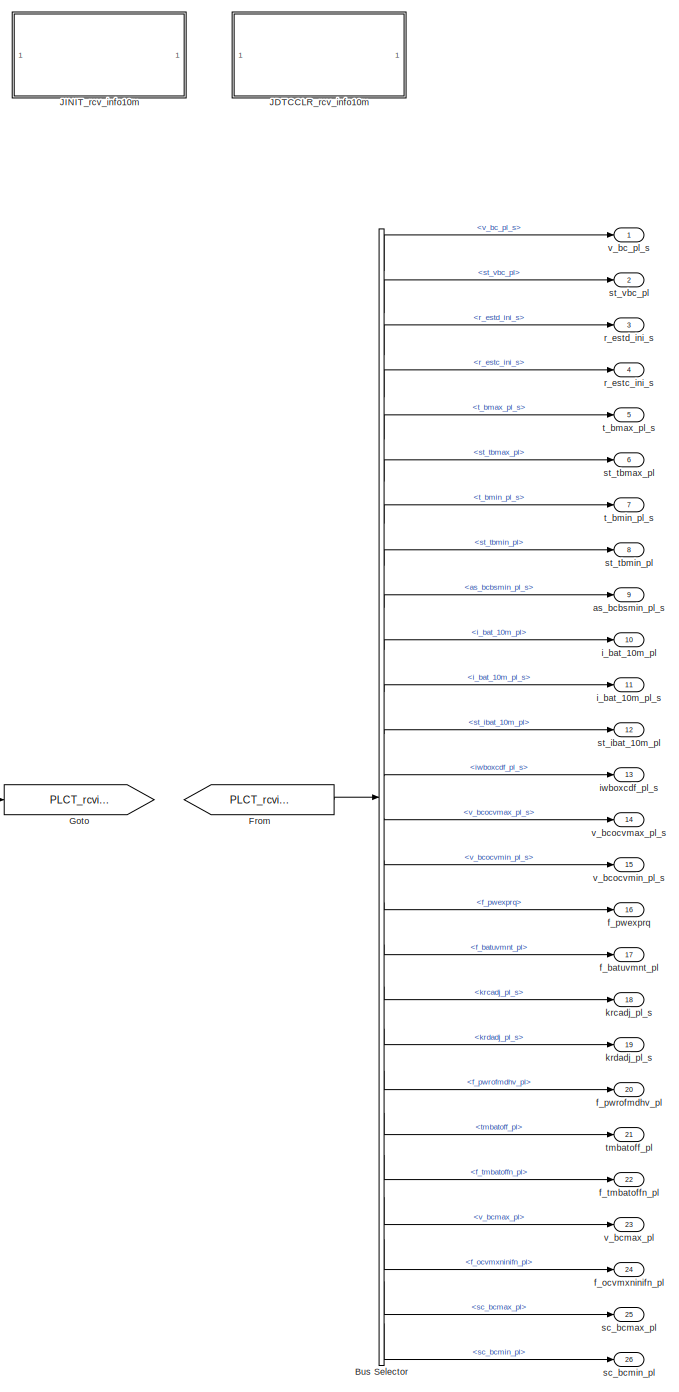
[diagram: root canvas - part 1/3, right side, full height]
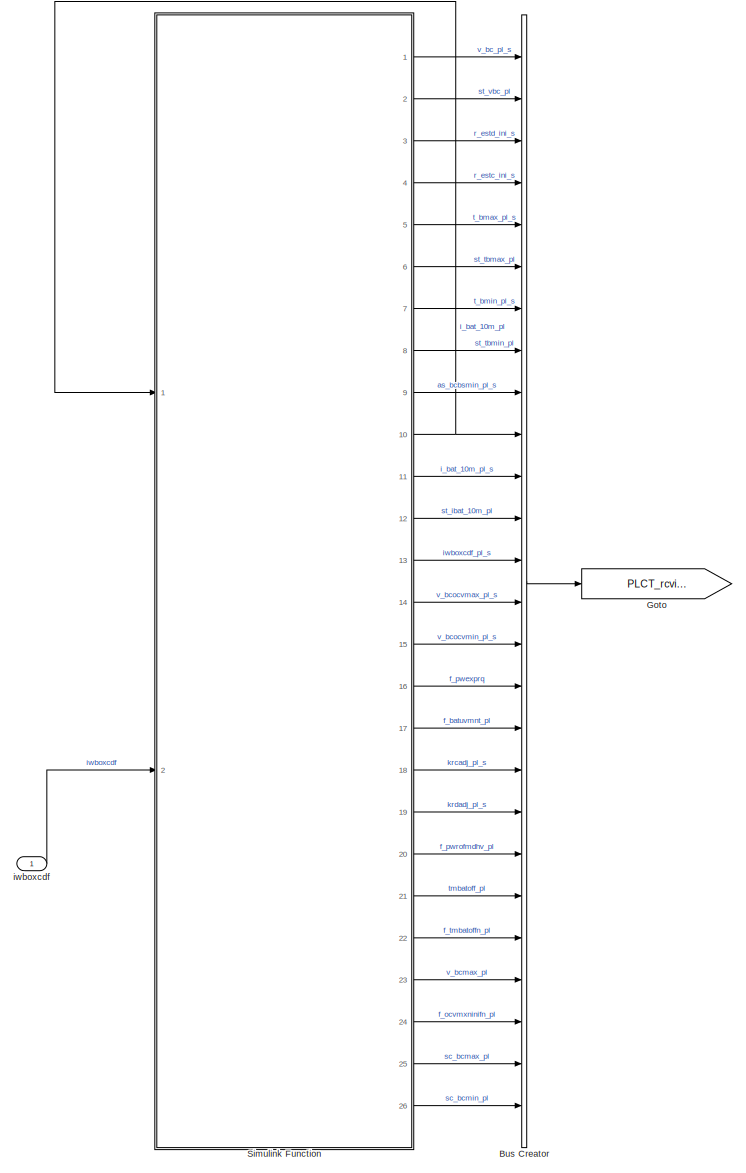
[diagram: root canvas - part 2/3, center side, full height]
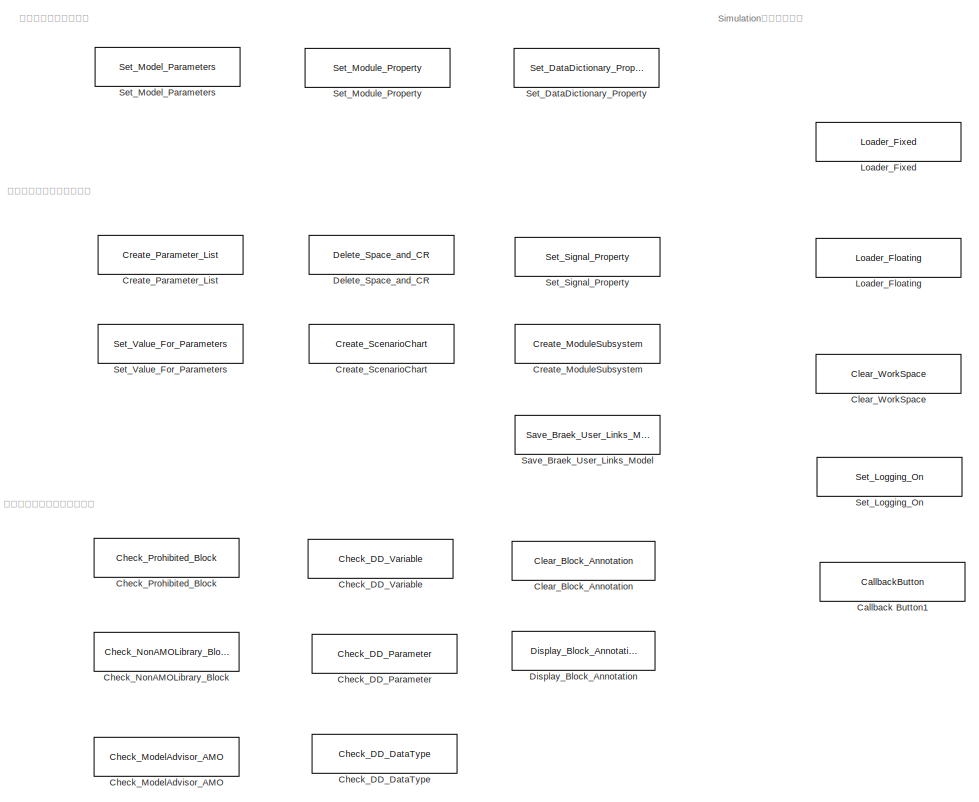
[diagram: root canvas - part 3/3, middle left region]
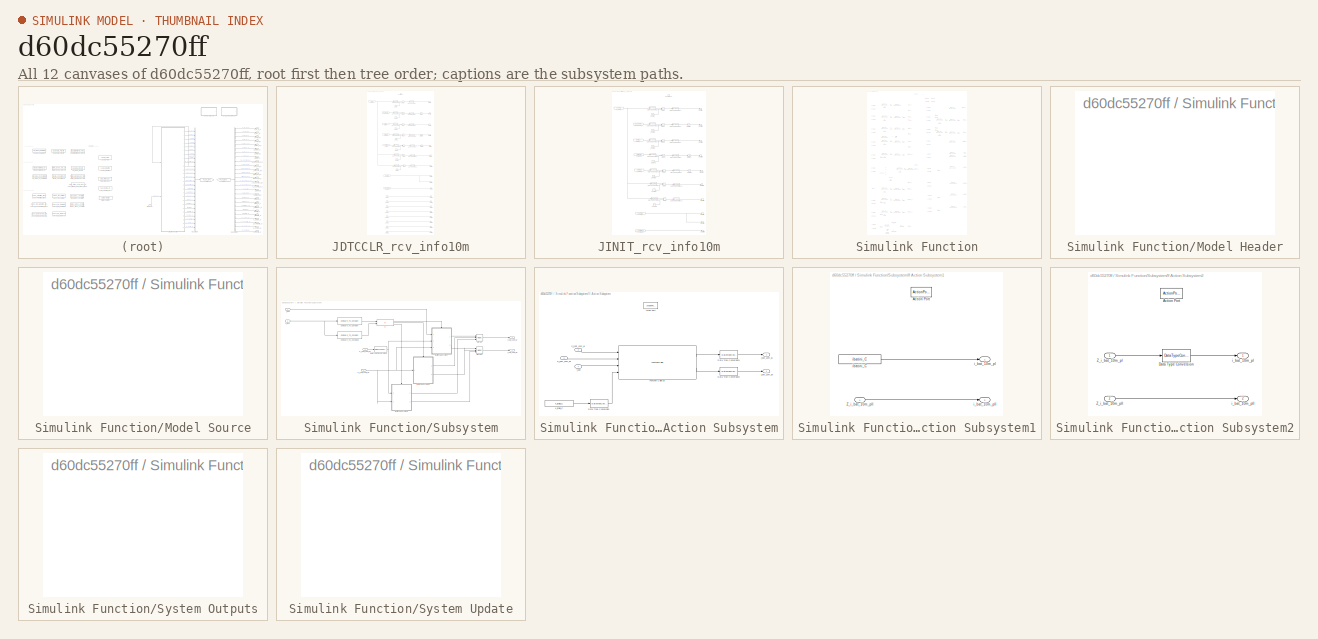
[diagram: thumbnail index - all 12 canvases of the model, root first then tree order]
MODEL slx_d60dc55270ff
KIND model
CONFIG AbsTol = auto
CONFIG EnableMultiTasking = on
CONFIG FixedStep = 0.01
CONFIG InitFcn = clear mex;
CONFIG MaxStep = auto
CONFIG MinStep = auto
CONFIG RelTol = 1e-3
CONFIG SampleTimeConstraint = Unconstrained
CONFIG Solver = FixedStepDiscrete
CONFIG SolverName = FixedStepDiscrete
CONFIG StartTime = 0.0
CONFIG StopTime = 10
BLOCK [BusCreator] Bus Creator
  DisplayOption = bar
  InheritFromInputs = on
  Inputs = 26
  Ports = [26, 1]
BLOCK [BusSelector] Bus Selector
  OutputAsBus = off
  OutputSignals = v_bc_pl_s,st_vbc_pl,r_estd_ini_s,r_estc_ini_s,t_bmax_pl_s,st_tbmax_pl,t_bmin_pl_s,st_tbmin_pl,as_bcbsmin_pl_s,i_bat_10m_pl,i_bat_10m_pl_s,st_ibat_10m_pl,iwboxcdf_pl_s,v_bcocvmax_pl_s,v_bcocvmin_pl_s,f_pwexprq,f_batuvmnt_pl,krcadj_pl_s,krdadj_pl_s,f_pwrofmdhv_pl,tmbatoff_pl,f_tmbatoffn_pl,v_bcmax_pl,f_ocvmxninifn_pl,sc_bcmax_pl,sc_bcmin_pl
  Ports = [1, 26]
BLOCK [CallbackButton] Callback Button1
  AttributesFormatString = %<Description>
  ButtonText = Clear MEX
  ClickFcn = clear mex;
  Description = メモリの解放
BLOCK [Reference] Check_DD_DataType  REF=Utility_Block_Library/Utility m-file Blocks/Check_DD_DataType
  AttributesFormatString = %<Description>
  Description = DDのDataTypeと\nモデル定義の整合性チェック
  Ports = []
  SourceBlock = Utility_Block_Library/Utility m-file Blocks/Check_DD_DataType
  SourceProductName = Utility_Block_Library
BLOCK [Reference] Check_DD_Parameter  REF=Utility_Block_Library/Utility m-file Blocks/Check_DD_Parameter
  AttributesFormatString = %<Description>
  Description = 下記ブロックとDDの整合性チェック\nConstant,Saturation,LookUpTable,Relay
  Ports = []
  SourceBlock = Utility_Block_Library/Utility m-file Blocks/Check_DD_Parameter
  SourceProductName = Utility_Block_Library
BLOCK [Reference] Check_DD_Variable  REF=Utility_Block_Library/Utility m-file Blocks/Check_DD_Variable
  AttributesFormatString = %<Description>
  Description = ポートブロック名、信号名とDDの整合性チェック\n強調表示の解除は　Ctrl+Shift+H
  Ports = []
  SourceBlock = Utility_Block_Library/Utility m-file Blocks/Check_DD_Variable
  SourceProductName = Utility_Block_Library
BLOCK [Reference] Check_ModelAdvisor_AMO  REF=Utility_Block_Library/Utility m-file Blocks/Check_ModelAdvisor_AMO
  AttributesFormatString = %<Description>
  Description = AMO標準設定の状態で\nModelAdvisorを開く
  Ports = []
  SourceBlock = Utility_Block_Library/Utility m-file Blocks/Check_ModelAdvisor_AMO
  SourceProductName = Utility_Block_Library
BLOCK [Reference] Check_NonAMOLibrary_Block  REF=Utility_Block_Library/Utility m-file Blocks/Check_NonAMOLibrary_Block
  AttributesFormatString = %<Description>
  Description = AMOライブラリー以外の\nブロックの有無をチェック
  Ports = []
  SourceBlock = Utility_Block_Library/Utility m-file Blocks/Check_NonAMOLibrary_Block
  SourceProductName = Utility_Block_Library
BLOCK [Reference] Check_Prohibited_Block  REF=Utility_Block_Library/Utility m-file Blocks/Check_Prohibited_Block
  AttributesFormatString = %<Description>
  Description = AMOガイドラインで使用禁止とされている\nブロックの有無をチェック
  Ports = []
  SourceBlock = Utility_Block_Library/Utility m-file Blocks/Check_Prohibited_Block
  SourceProductName = Utility_Block_Library
BLOCK [Reference] Clear_Block_Annotation  REF=Utility_Block_Library/Utility m-file Blocks/Clear_Block_Annotation
  AttributesFormatString = %<Description>
  Description = 確認用に表示したブロックプロパティをクリア
  Ports = []
  SourceBlock = Utility_Block_Library/Utility m-file Blocks/Clear_Block_Annotation
  SourceProductName = Utility_Block_Library
BLOCK [Reference] Clear_WorkSpace  REF=Utility_Block_Library/Utility m-file Blocks/Clear_WorkSpace
  AttributesFormatString = ワークスペースをクリア
  Ports = []
  SourceBlock = Utility_Block_Library/Utility m-file Blocks/Clear_WorkSpace
  SourceProductName = Utility_Block_Library
BLOCK [Reference] Create_ModuleSubsystem  REF=Utility_Block_Library/Utility m-file Blocks/Create_ModuleSubsystem
  AttributesFormatString = %<Description>
  Description = DataDictionaryからBlankModuleを作成します
  Ports = []
  SourceBlock = Utility_Block_Library/Utility m-file Blocks/Create_ModuleSubsystem
  SourceProductName = Utility_Block_Library
BLOCK [Reference] Create_Parameter_List  REF=Utility_Block_Library/Utility m-file Blocks/Create_Parameter_List
  AttributesFormatString = %<Description>
  Description = モデル内で使われている変数リストを出力する
  Ports = []
  SourceBlock = Utility_Block_Library/Utility m-file Blocks/Create_Parameter_List
  SourceProductName = Utility_Block_Library
BLOCK [Reference] Create_ScenarioChart  REF=Utility_Block_Library/Utility m-file Blocks/Create_ScenarioChart
  AttributesFormatString = %<Description>
  Description = シミュレーション用のシナリオチャート作成
  Ports = []
  SourceBlock = Utility_Block_Library/Utility m-file Blocks/Create_ScenarioChart
  SourceProductName = Utility_Block_Library
BLOCK [Reference] Delete_Space_and_CR  REF=Utility_Block_Library/Utility m-file Blocks/Delete_Space_and_CR
  AttributesFormatString = %<Description>
  Description = ポートブロック名から空白と改行を削除
  Ports = []
  SourceBlock = Utility_Block_Library/Utility m-file Blocks/Delete_Space_and_CR
  SourceProductName = Utility_Block_Library
BLOCK [Reference] Display_Block_Annotation  REF=Utility_Block_Library/Utility m-file Blocks/Display_Block_Annotation
  AttributesFormatString = %<Description>
  Description = ブロックプロパティ確認用
  Ports = []
  SourceBlock = Utility_Block_Library/Utility m-file Blocks/Display_Block_Annotation
  SourceProductName = Utility_Block_Library
BLOCK [From] From
  GotoTag = PLCT_rcvinfo10ms01_20p00_0
BLOCK [Goto] Goto
  AttributesFormatString = %<Tag>
  GotoTag = PLCT_rcvinfo10ms01_20p00_0
  Tag = #AMO_Lib
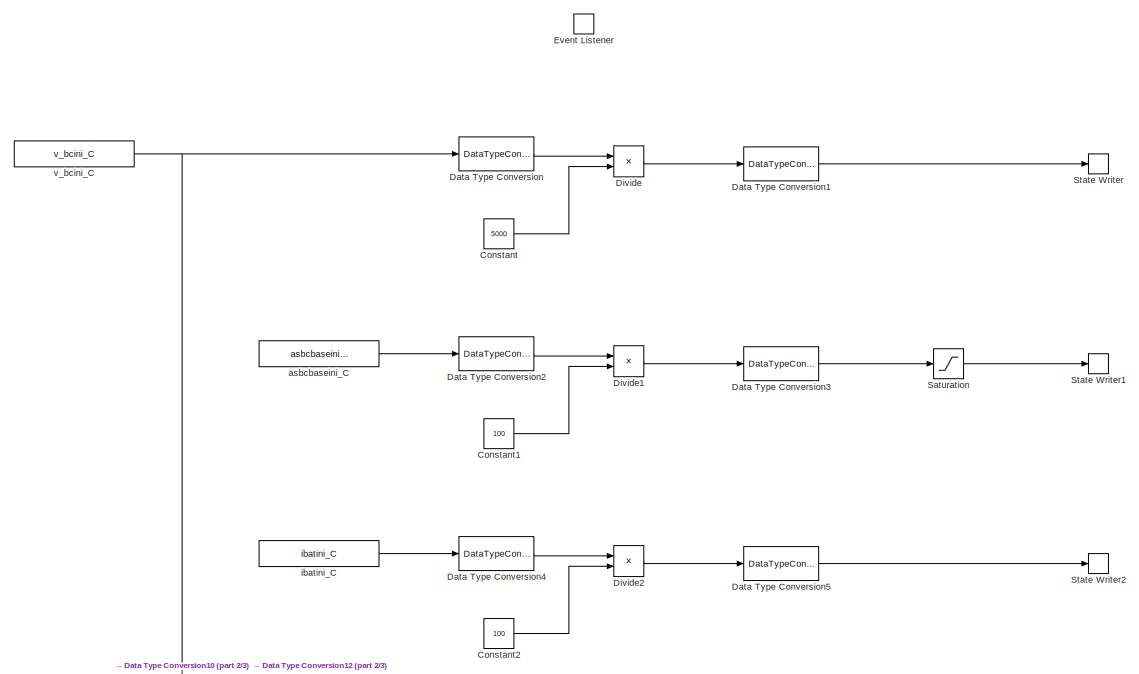
[diagram: JDTCCLR_rcv_info10m - part 1/3, full width, top band]
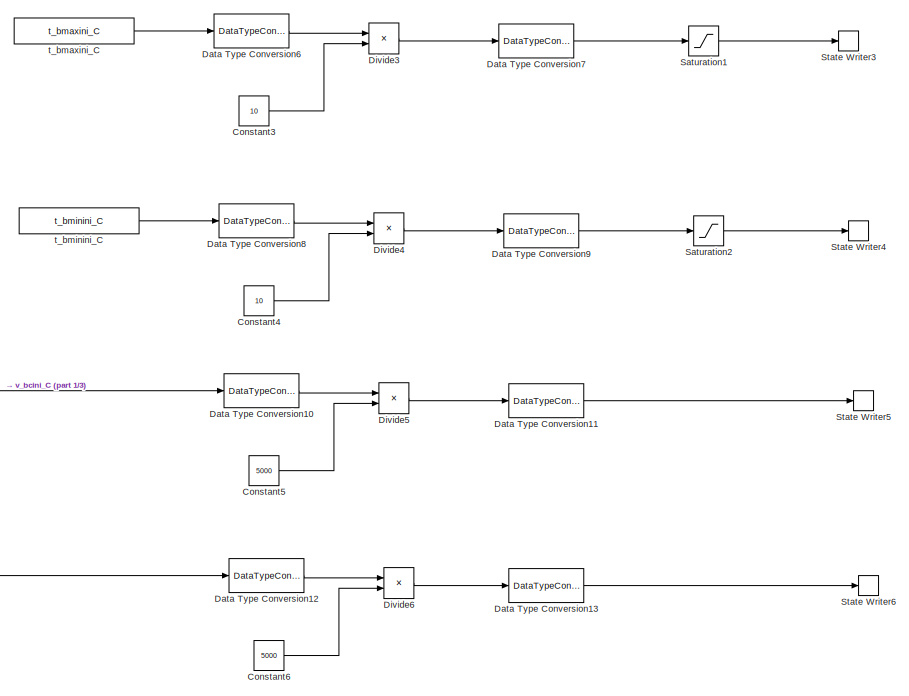
[diagram: JDTCCLR_rcv_info10m - part 2/3, full width, middle band]
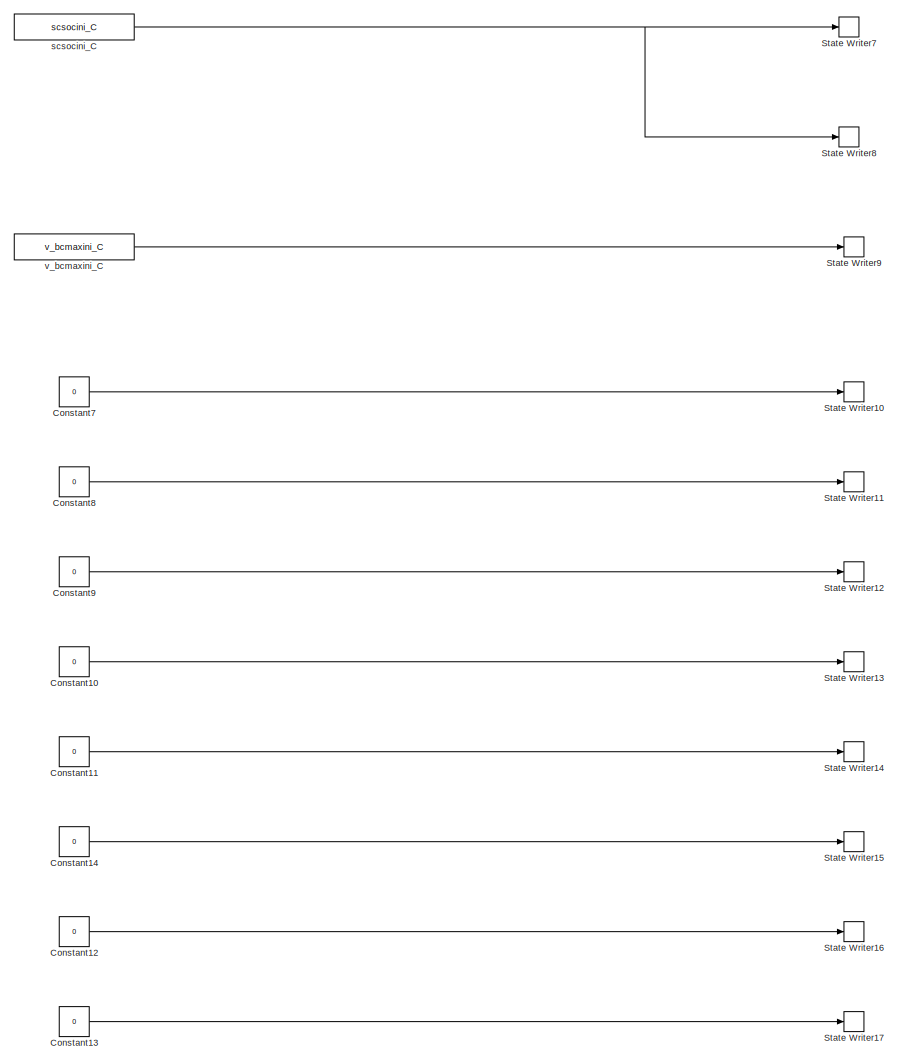
[diagram: JDTCCLR_rcv_info10m - part 3/3, full width, bottom band]
BLOCK [SubSystem] JDTCCLR_rcv_info10m
  Ports = []
  RequestExecContextInheritance = off
  TreatAsAtomicUnit = on
BLOCK [Constant] JDTCCLR_rcv_info10m/Constant
  AttributesFormatString = %<Tag>\nOutDataType = %<OutDataTypeStr>
  OutDataTypeStr = single
  Tag = #AMO_Lib
  Value = 5000
BLOCK [Constant] JDTCCLR_rcv_info10m/Constant1
  AttributesFormatString = %<Tag>\nOutDataType = %<OutDataTypeStr>
  OutDataTypeStr = single
  Tag = #AMO_Lib
  Value = 100
BLOCK [Constant] JDTCCLR_rcv_info10m/Constant10
  AttributesFormatString = %<Tag>\nOutDataType = %<OutDataTypeStr>
  OutDataTypeStr = T_Flg
  Tag = #AMO_Lib
  Value = 0
BLOCK [Constant] JDTCCLR_rcv_info10m/Constant11
  AttributesFormatString = %<Tag>\nOutDataType = %<OutDataTypeStr>
  OutDataTypeStr = T_Flg
  Tag = #AMO_Lib
  Value = 0
BLOCK [Constant] JDTCCLR_rcv_info10m/Constant12
  AttributesFormatString = %<Tag>\nOutDataType = %<OutDataTypeStr>
  OutDataTypeStr = T_uint8
  Tag = #AMO_Lib
  Value = 0
BLOCK [Constant] JDTCCLR_rcv_info10m/Constant13
  AttributesFormatString = %<Tag>\nOutDataType = %<OutDataTypeStr>
  OutDataTypeStr = TSB_Dc
  Tag = #AMO_Lib
  Value = 0
BLOCK [Constant] JDTCCLR_rcv_info10m/Constant14
  AttributesFormatString = %<Tag>\nOutDataType = %<OutDataTypeStr>
  OutDataTypeStr = T_uint8
  Tag = #AMO_Lib
  Value = 0
BLOCK [Constant] JDTCCLR_rcv_info10m/Constant2
  AttributesFormatString = %<Tag>\nOutDataType = %<OutDataTypeStr>
  OutDataTypeStr = single
  Tag = #AMO_Lib
  Value = 100
BLOCK [Constant] JDTCCLR_rcv_info10m/Constant3
  AttributesFormatString = %<Tag>\nOutDataType = %<OutDataTypeStr>
  OutDataTypeStr = single
  Tag = #AMO_Lib
  Value = 10
BLOCK [Constant] JDTCCLR_rcv_info10m/Constant4
  AttributesFormatString = %<Tag>\nOutDataType = %<OutDataTypeStr>
  OutDataTypeStr = single
  Tag = #AMO_Lib
  Value = 10
BLOCK [Constant] JDTCCLR_rcv_info10m/Constant5
  AttributesFormatString = %<Tag>\nOutDataType = %<OutDataTypeStr>
  OutDataTypeStr = single
  Tag = #AMO_Lib
  Value = 5000
BLOCK [Constant] JDTCCLR_rcv_info10m/Constant6
  AttributesFormatString = %<Tag>\nOutDataType = %<OutDataTypeStr>
  OutDataTypeStr = single
  Tag = #AMO_Lib
  Value = 5000
BLOCK [Constant] JDTCCLR_rcv_info10m/Constant7
  AttributesFormatString = %<Tag>\nOutDataType = %<OutDataTypeStr>
  OutDataTypeStr = T_Flg
  Tag = #AMO_Lib
  Value = 0
BLOCK [Constant] JDTCCLR_rcv_info10m/Constant8
  AttributesFormatString = %<Tag>\nOutDataType = %<OutDataTypeStr>
  OutDataTypeStr = T_Flg
  Tag = #AMO_Lib
  Value = 0
BLOCK [Constant] JDTCCLR_rcv_info10m/Constant9
  AttributesFormatString = %<Tag>\nOutDataType = %<OutDataTypeStr>
  OutDataTypeStr = T_Flg
  Tag = #AMO_Lib
  Value = 0
BLOCK [DataTypeConversion] JDTCCLR_rcv_info10m/Data Type Conversion
  AttributesFormatString = %<Tag>\nOutDataType = %<OutDataTypeStr>
  ConvertRealWorld = Stored Integer (SI)
  OutDataTypeStr = single
  OutMax = OutMax
  OutMin = OutMin
  SampleTime = SampleTime
  Tag = #AMO_Lib
BLOCK [DataTypeConversion] JDTCCLR_rcv_info10m/Data Type Conversion1
  AttributesFormatString = %<Tag>\nOutDataType = %<OutDataTypeStr>
  OutDataTypeStr = TSB_Volt_float
  OutMax = OutMax
  OutMin = OutMin
  SampleTime = SampleTime
  Tag = #AMO_Lib
BLOCK [DataTypeConversion] JDTCCLR_rcv_info10m/Data Type Conversion10
  AttributesFormatString = %<Tag>\nOutDataType = %<OutDataTypeStr>
  ConvertRealWorld = Stored Integer (SI)
  OutDataTypeStr = single
  OutMax = OutMax
  OutMin = OutMin
  SampleTime = SampleTime
  Tag = #AMO_Lib
BLOCK [DataTypeConversion] JDTCCLR_rcv_info10m/Data Type Conversion11
  AttributesFormatString = %<Tag>\nOutDataType = %<OutDataTypeStr>
  OutDataTypeStr = TSB_Volt_float
  OutMax = OutMax
  OutMin = OutMin
  SampleTime = SampleTime
  Tag = #AMO_Lib
BLOCK [DataTypeConversion] JDTCCLR_rcv_info10m/Data Type Conversion12
  AttributesFormatString = %<Tag>\nOutDataType = %<OutDataTypeStr>
  ConvertRealWorld = Stored Integer (SI)
  OutDataTypeStr = single
  OutMax = OutMax
  OutMin = OutMin
  SampleTime = SampleTime
  Tag = #AMO_Lib
BLOCK [DataTypeConversion] JDTCCLR_rcv_info10m/Data Type Conversion13
  AttributesFormatString = %<Tag>\nOutDataType = %<OutDataTypeStr>
  OutDataTypeStr = TSB_Volt_float
  OutMax = OutMax
  OutMin = OutMin
  SampleTime = SampleTime
  Tag = #AMO_Lib
BLOCK [DataTypeConversion] JDTCCLR_rcv_info10m/Data Type Conversion2
  AttributesFormatString = %<Tag>\nOutDataType = %<OutDataTypeStr>
  ConvertRealWorld = Stored Integer (SI)
  OutDataTypeStr = single
  OutMax = OutMax
  OutMin = OutMin
  SampleTime = SampleTime
  Tag = #AMO_Lib
BLOCK [DataTypeConversion] JDTCCLR_rcv_info10m/Data Type Conversion3
  AttributesFormatString = %<Tag>\nOutDataType = %<OutDataTypeStr>
  OutDataTypeStr = TSB_Coulomb_float
  OutMax = OutMax
  OutMin = OutMin
  SampleTime = SampleTime
  Tag = #AMO_Lib
BLOCK [DataTypeConversion] JDTCCLR_rcv_info10m/Data Type Conversion4
  AttributesFormatString = %<Tag>\nOutDataType = %<OutDataTypeStr>
  ConvertRealWorld = Stored Integer (SI)
  OutDataTypeStr = single
  OutMax = OutMax
  OutMin = OutMin
  SampleTime = SampleTime
  Tag = #AMO_Lib
BLOCK [DataTypeConversion] JDTCCLR_rcv_info10m/Data Type Conversion5
  AttributesFormatString = %<Tag>\nOutDataType = %<OutDataTypeStr>
  OutDataTypeStr = TSB_Dc_float
  OutMax = OutMax
  OutMin = OutMin
  SampleTime = SampleTime
  Tag = #AMO_Lib
BLOCK [DataTypeConversion] JDTCCLR_rcv_info10m/Data Type Conversion6
  AttributesFormatString = %<Tag>\nOutDataType = %<OutDataTypeStr>
  ConvertRealWorld = Stored Integer (SI)
  OutDataTypeStr = single
  OutMax = OutMax
  OutMin = OutMin
  SampleTime = SampleTime
  Tag = #AMO_Lib
BLOCK [DataTypeConversion] JDTCCLR_rcv_info10m/Data Type Conversion7
  AttributesFormatString = %<Tag>\nOutDataType = %<OutDataTypeStr>
  OutDataTypeStr = TSB_Tbatt_float
  OutMax = OutMax
  OutMin = OutMin
  SampleTime = SampleTime
  Tag = #AMO_Lib
BLOCK [DataTypeConversion] JDTCCLR_rcv_info10m/Data Type Conversion8
  AttributesFormatString = %<Tag>\nOutDataType = %<OutDataTypeStr>
  ConvertRealWorld = Stored Integer (SI)
  OutDataTypeStr = single
  OutMax = OutMax
  OutMin = OutMin
  SampleTime = SampleTime
  Tag = #AMO_Lib
BLOCK [DataTypeConversion] JDTCCLR_rcv_info10m/Data Type Conversion9
  AttributesFormatString = %<Tag>\nOutDataType = %<OutDataTypeStr>
  OutDataTypeStr = TSB_Tbatt_float
  OutMax = OutMax
  OutMin = OutMin
  SampleTime = SampleTime
  Tag = #AMO_Lib
BLOCK [Product] JDTCCLR_rcv_info10m/Divide
  AttributesFormatString = %<Tag>\nOutDataType = %<OutDataTypeStr>
  CollapseDim = CollapseDim
  InputSameDT = off
  Inputs = */
  OutDataTypeStr = Inherit: Inherit via internal rule
  OutMax = OutMax
  OutMin = OutMin
  Ports = [2, 1]
  SampleTime = SampleTime
  Tag = #AMO_Lib
BLOCK [Product] JDTCCLR_rcv_info10m/Divide1
  AttributesFormatString = %<Tag>\nOutDataType = %<OutDataTypeStr>
  CollapseDim = CollapseDim
  InputSameDT = off
  Inputs = */
  OutDataTypeStr = Inherit: Inherit via internal rule
  OutMax = OutMax
  OutMin = OutMin
  Ports = [2, 1]
  SampleTime = SampleTime
  Tag = #AMO_Lib
BLOCK [Product] JDTCCLR_rcv_info10m/Divide2
  AttributesFormatString = %<Tag>\nOutDataType = %<OutDataTypeStr>
  CollapseDim = CollapseDim
  InputSameDT = off
  Inputs = */
  OutDataTypeStr = Inherit: Inherit via internal rule
  OutMax = OutMax
  OutMin = OutMin
  Ports = [2, 1]
  SampleTime = SampleTime
  Tag = #AMO_Lib
BLOCK [Product] JDTCCLR_rcv_info10m/Divide3
  AttributesFormatString = %<Tag>\nOutDataType = %<OutDataTypeStr>
  CollapseDim = CollapseDim
  InputSameDT = off
  Inputs = */
  OutDataTypeStr = Inherit: Inherit via internal rule
  OutMax = OutMax
  OutMin = OutMin
  Ports = [2, 1]
  SampleTime = SampleTime
  Tag = #AMO_Lib
BLOCK [Product] JDTCCLR_rcv_info10m/Divide4
  AttributesFormatString = %<Tag>\nOutDataType = %<OutDataTypeStr>
  CollapseDim = CollapseDim
  InputSameDT = off
  Inputs = */
  OutDataTypeStr = Inherit: Inherit via internal rule
  OutMax = OutMax
  OutMin = OutMin
  Ports = [2, 1]
  SampleTime = SampleTime
  Tag = #AMO_Lib
BLOCK [Product] JDTCCLR_rcv_info10m/Divide5
  AttributesFormatString = %<Tag>\nOutDataType = %<OutDataTypeStr>
  CollapseDim = CollapseDim
  InputSameDT = off
  Inputs = */
  OutDataTypeStr = Inherit: Inherit via internal rule
  OutMax = OutMax
  OutMin = OutMin
  Ports = [2, 1]
  SampleTime = SampleTime
  Tag = #AMO_Lib
BLOCK [Product] JDTCCLR_rcv_info10m/Divide6
  AttributesFormatString = %<Tag>\nOutDataType = %<OutDataTypeStr>
  CollapseDim = CollapseDim
  InputSameDT = off
  Inputs = */
  OutDataTypeStr = Inherit: Inherit via internal rule
  OutMax = OutMax
  OutMin = OutMin
  Ports = [2, 1]
  SampleTime = SampleTime
  Tag = #AMO_Lib
BLOCK [EventListener] JDTCCLR_rcv_info10m/Event Listener
  DisableCoverage = on
  EventName = JDTCCLR_rcv_info10m
  EventType = Reset
BLOCK [Saturate] JDTCCLR_rcv_info10m/Saturation
  AttributesFormatString = %<Tag>\n%<LowerLimit> - %<UpperLimit>\nOutDataType = %<OutDataTypeStr>
  InputPortMap = u0
  LowerLimit = LowerLimit
  OutMax = OutMax
  OutMin = OutMin
  Ports = [1, 1]
  RndMeth = Zero
  SampleTime = SampleTime
  Tag = #AMO_Lib
  UpperLimit = UpperLimit
BLOCK [Saturate] JDTCCLR_rcv_info10m/Saturation1
  AttributesFormatString = %<Tag>\n%<LowerLimit> - %<UpperLimit>\nOutDataType = %<OutDataTypeStr>
  InputPortMap = u0
  LowerLimit = LowerLimit
  OutMax = OutMax
  OutMin = OutMin
  Ports = [1, 1]
  RndMeth = Zero
  SampleTime = SampleTime
  Tag = #AMO_Lib
  UpperLimit = UpperLimit
BLOCK [Saturate] JDTCCLR_rcv_info10m/Saturation2
  AttributesFormatString = %<Tag>\n%<LowerLimit> - %<UpperLimit>\nOutDataType = %<OutDataTypeStr>
  InputPortMap = u0
  LowerLimit = LowerLimit
  OutMax = OutMax
  OutMin = OutMin
  Ports = [1, 1]
  RndMeth = Zero
  SampleTime = SampleTime
  Tag = #AMO_Lib
  UpperLimit = UpperLimit
BLOCK [StateWriter] JDTCCLR_rcv_info10m/State Writer
  StateOwnerBlock = ../../Simulink Function/v_bc_pl_s
BLOCK [StateWriter] JDTCCLR_rcv_info10m/State Writer1
  StateOwnerBlock = ../../Simulink Function/as_bcbsmin_pl_s
BLOCK [StateWriter] JDTCCLR_rcv_info10m/State Writer10
  StateOwnerBlock = ../../Simulink Function/f_batuvmnt_pl
BLOCK [StateWriter] JDTCCLR_rcv_info10m/State Writer11
  StateOwnerBlock = ../../Simulink Function/f_ocvmxninifn_pl
BLOCK [StateWriter] JDTCCLR_rcv_info10m/State Writer12
  StateOwnerBlock = ../../Simulink Function/f_pwexprq
BLOCK [StateWriter] JDTCCLR_rcv_info10m/State Writer13
  StateOwnerBlock = ../../Simulink Function/f_pwrofmdhv_pl
BLOCK [StateWriter] JDTCCLR_rcv_info10m/State Writer14
  StateOwnerBlock = ../../Simulink Function/f_tmbatoffn_pl
BLOCK [StateWriter] JDTCCLR_rcv_info10m/State Writer15
  StateOwnerBlock = ../../Simulink Function/st_tbmax_pl
BLOCK [StateWriter] JDTCCLR_rcv_info10m/State Writer16
  StateOwnerBlock = ../../Simulink Function/st_tbmin_pl
BLOCK [StateWriter] JDTCCLR_rcv_info10m/State Writer17
  StateOwnerBlock = ../../Simulink Function/i_bat_10m_pl
BLOCK [StateWriter] JDTCCLR_rcv_info10m/State Writer2
  StateOwnerBlock = ../../Simulink Function/i_bat_10m_pl_s
BLOCK [StateWriter] JDTCCLR_rcv_info10m/State Writer3
  StateOwnerBlock = ../../Simulink Function/t_bmax_pl_s
BLOCK [StateWriter] JDTCCLR_rcv_info10m/State Writer4
  StateOwnerBlock = ../../Simulink Function/t_bmin_pl_s
BLOCK [StateWriter] JDTCCLR_rcv_info10m/State Writer5
  StateOwnerBlock = ../../Simulink Function/v_bcocvmax_pl_s
BLOCK [StateWriter] JDTCCLR_rcv_info10m/State Writer6
  StateOwnerBlock = ../../Simulink Function/v_bcocvmin_pl_s
BLOCK [StateWriter] JDTCCLR_rcv_info10m/State Writer7
  StateOwnerBlock = ../../Simulink Function/sc_bcmax_pl
BLOCK [StateWriter] JDTCCLR_rcv_info10m/State Writer8
  StateOwnerBlock = ../../Simulink Function/sc_bcmin_pl
BLOCK [StateWriter] JDTCCLR_rcv_info10m/State Writer9
  StateOwnerBlock = ../../Simulink Function/v_bcmax_pl
BLOCK [Constant] JDTCCLR_rcv_info10m/asbcbaseini_C
  AttributesFormatString = %<Tag>\nOutDataType = %<OutDataTypeStr>
  Tag = #AMO_Lib
  Value = asbcbaseini_C
BLOCK [Constant] JDTCCLR_rcv_info10m/ibatini_C
  AttributesFormatString = %<Tag>\nOutDataType = %<OutDataTypeStr>
  Tag = #AMO_Lib
  Value = ibatini_C
BLOCK [Constant] JDTCCLR_rcv_info10m/scsocini_C
  AttributesFormatString = %<Tag>\nOutDataType = %<OutDataTypeStr>
  Tag = #AMO_Lib
  Value = scsocini_C
BLOCK [Constant] JDTCCLR_rcv_info10m/t_bmaxini_C
  AttributesFormatString = %<Tag>\nOutDataType = %<OutDataTypeStr>
  Tag = #AMO_Lib
  Value = t_bmaxini_C
BLOCK [Constant] JDTCCLR_rcv_info10m/t_bminini_C
  AttributesFormatString = %<Tag>\nOutDataType = %<OutDataTypeStr>
  Tag = #AMO_Lib
  Value = t_bminini_C
BLOCK [Constant] JDTCCLR_rcv_info10m/v_bcini_C
  AttributesFormatString = %<Tag>\nOutDataType = %<OutDataTypeStr>
  Tag = #AMO_Lib
  Value = v_bcini_C
BLOCK [Constant] JDTCCLR_rcv_info10m/v_bcmaxini_C
  AttributesFormatString = %<Tag>\nOutDataType = %<OutDataTypeStr>
  Tag = #AMO_Lib
  Value = v_bcmaxini_C
BLOCK [SubSystem] JINIT_rcv_info10m
  Ports = []
  RequestExecContextInheritance = off
  TreatAsAtomicUnit = on
BLOCK [Constant] JINIT_rcv_info10m/Constant
  AttributesFormatString = %<Tag>\nOutDataType = %<OutDataTypeStr>
  OutDataTypeStr = single
  Tag = #AMO_Lib
  Value = 5000
BLOCK [Constant] JINIT_rcv_info10m/Constant1
  AttributesFormatString = %<Tag>\nOutDataType = %<OutDataTypeStr>
  OutDataTypeStr = single
  Tag = #AMO_Lib
  Value = 100
BLOCK [Constant] JINIT_rcv_info10m/Constant2
  AttributesFormatString = %<Tag>\nOutDataType = %<OutDataTypeStr>
  OutDataTypeStr = single
  Tag = #AMO_Lib
  Value = 100
BLOCK [Constant] JINIT_rcv_info10m/Constant3
  AttributesFormatString = %<Tag>\nOutDataType = %<OutDataTypeStr>
  OutDataTypeStr = single
  Tag = #AMO_Lib
  Value = 10
BLOCK [Constant] JINIT_rcv_info10m/Constant4
  AttributesFormatString = %<Tag>\nOutDataType = %<OutDataTypeStr>
  OutDataTypeStr = single
  Tag = #AMO_Lib
  Value = 10
BLOCK [Constant] JINIT_rcv_info10m/Constant5
  AttributesFormatString = %<Tag>\nOutDataType = %<OutDataTypeStr>
  OutDataTypeStr = single
  Tag = #AMO_Lib
  Value = 5000
BLOCK [Constant] JINIT_rcv_info10m/Constant6
  AttributesFormatString = %<Tag>\nOutDataType = %<OutDataTypeStr>
  OutDataTypeStr = single
  Tag = #AMO_Lib
  Value = 5000
BLOCK [DataTypeConversion] JINIT_rcv_info10m/Data Type Conversion
  AttributesFormatString = %<Tag>\nOutDataType = %<OutDataTypeStr>
  ConvertRealWorld = Stored Integer (SI)
  OutDataTypeStr = single
  OutMax = OutMax
  OutMin = OutMin
  SampleTime = SampleTime
  Tag = #AMO_Lib
BLOCK [DataTypeConversion] JINIT_rcv_info10m/Data Type Conversion1
  AttributesFormatString = %<Tag>\nOutDataType = %<OutDataTypeStr>
  OutDataTypeStr = TSB_Volt_float
  OutMax = OutMax
  OutMin = OutMin
  SampleTime = SampleTime
  Tag = #AMO_Lib
BLOCK [DataTypeConversion] JINIT_rcv_info10m/Data Type Conversion10
  AttributesFormatString = %<Tag>\nOutDataType = %<OutDataTypeStr>
  ConvertRealWorld = Stored Integer (SI)
  OutDataTypeStr = single
  OutMax = OutMax
  OutMin = OutMin
  SampleTime = SampleTime
  Tag = #AMO_Lib
BLOCK [DataTypeConversion] JINIT_rcv_info10m/Data Type Conversion11
  AttributesFormatString = %<Tag>\nOutDataType = %<OutDataTypeStr>
  OutDataTypeStr = TSB_Volt_float
  OutMax = OutMax
  OutMin = OutMin
  SampleTime = SampleTime
  Tag = #AMO_Lib
BLOCK [DataTypeConversion] JINIT_rcv_info10m/Data Type Conversion12
  AttributesFormatString = %<Tag>\nOutDataType = %<OutDataTypeStr>
  ConvertRealWorld = Stored Integer (SI)
  OutDataTypeStr = single
  OutMax = OutMax
  OutMin = OutMin
  SampleTime = SampleTime
  Tag = #AMO_Lib
BLOCK [DataTypeConversion] JINIT_rcv_info10m/Data Type Conversion13
  AttributesFormatString = %<Tag>\nOutDataType = %<OutDataTypeStr>
  OutDataTypeStr = TSB_Volt_float
  OutMax = OutMax
  OutMin = OutMin
  SampleTime = SampleTime
  Tag = #AMO_Lib
BLOCK [DataTypeConversion] JINIT_rcv_info10m/Data Type Conversion2
  AttributesFormatString = %<Tag>\nOutDataType = %<OutDataTypeStr>
  ConvertRealWorld = Stored Integer (SI)
  OutDataTypeStr = single
  OutMax = OutMax
  OutMin = OutMin
  SampleTime = SampleTime
  Tag = #AMO_Lib
BLOCK [DataTypeConversion] JINIT_rcv_info10m/Data Type Conversion3
  AttributesFormatString = %<Tag>\nOutDataType = %<OutDataTypeStr>
  OutDataTypeStr = TSB_Coulomb_float
  OutMax = OutMax
  OutMin = OutMin
  SampleTime = SampleTime
  Tag = #AMO_Lib
BLOCK [DataTypeConversion] JINIT_rcv_info10m/Data Type Conversion4
  AttributesFormatString = %<Tag>\nOutDataType = %<OutDataTypeStr>
  ConvertRealWorld = Stored Integer (SI)
  OutDataTypeStr = single
  OutMax = OutMax
  OutMin = OutMin
  SampleTime = SampleTime
  Tag = #AMO_Lib
BLOCK [DataTypeConversion] JINIT_rcv_info10m/Data Type Conversion5
  AttributesFormatString = %<Tag>\nOutDataType = %<OutDataTypeStr>
  OutDataTypeStr = TSB_Dc_float
  OutMax = OutMax
  OutMin = OutMin
  SampleTime = SampleTime
  Tag = #AMO_Lib
BLOCK [DataTypeConversion] JINIT_rcv_info10m/Data Type Conversion6
  AttributesFormatString = %<Tag>\nOutDataType = %<OutDataTypeStr>
  ConvertRealWorld = Stored Integer (SI)
  OutDataTypeStr = single
  OutMax = OutMax
  OutMin = OutMin
  SampleTime = SampleTime
  Tag = #AMO_Lib
BLOCK [DataTypeConversion] JINIT_rcv_info10m/Data Type Conversion7
  AttributesFormatString = %<Tag>\nOutDataType = %<OutDataTypeStr>
  OutDataTypeStr = TSB_Tbatt_float
  OutMax = OutMax
  OutMin = OutMin
  SampleTime = SampleTime
  Tag = #AMO_Lib
BLOCK [DataTypeConversion] JINIT_rcv_info10m/Data Type Conversion8
  AttributesFormatString = %<Tag>\nOutDataType = %<OutDataTypeStr>
  ConvertRealWorld = Stored Integer (SI)
  OutDataTypeStr = single
  OutMax = OutMax
  OutMin = OutMin
  SampleTime = SampleTime
  Tag = #AMO_Lib
BLOCK [DataTypeConversion] JINIT_rcv_info10m/Data Type Conversion9
  AttributesFormatString = %<Tag>\nOutDataType = %<OutDataTypeStr>
  OutDataTypeStr = TSB_Tbatt_float
  OutMax = OutMax
  OutMin = OutMin
  SampleTime = SampleTime
  Tag = #AMO_Lib
BLOCK [Product] JINIT_rcv_info10m/Divide
  AttributesFormatString = %<Tag>\nOutDataType = %<OutDataTypeStr>
  CollapseDim = CollapseDim
  InputSameDT = off
  Inputs = */
  OutDataTypeStr = Inherit: Inherit via internal rule
  OutMax = OutMax
  OutMin = OutMin
  Ports = [2, 1]
  SampleTime = SampleTime
  Tag = #AMO_Lib
BLOCK [Product] JINIT_rcv_info10m/Divide1
  AttributesFormatString = %<Tag>\nOutDataType = %<OutDataTypeStr>
  CollapseDim = CollapseDim
  InputSameDT = off
  Inputs = */
  OutDataTypeStr = Inherit: Inherit via internal rule
  OutMax = OutMax
  OutMin = OutMin
  Ports = [2, 1]
  SampleTime = SampleTime
  Tag = #AMO_Lib
BLOCK [Product] JINIT_rcv_info10m/Divide2
  AttributesFormatString = %<Tag>\nOutDataType = %<OutDataTypeStr>
  CollapseDim = CollapseDim
  InputSameDT = off
  Inputs = */
  OutDataTypeStr = Inherit: Inherit via internal rule
  OutMax = OutMax
  OutMin = OutMin
  Ports = [2, 1]
  SampleTime = SampleTime
  Tag = #AMO_Lib
BLOCK [Product] JINIT_rcv_info10m/Divide3
  AttributesFormatString = %<Tag>\nOutDataType = %<OutDataTypeStr>
  CollapseDim = CollapseDim
  InputSameDT = off
  Inputs = */
  OutDataTypeStr = Inherit: Inherit via internal rule
  OutMax = OutMax
  OutMin = OutMin
  Ports = [2, 1]
  SampleTime = SampleTime
  Tag = #AMO_Lib
BLOCK [Product] JINIT_rcv_info10m/Divide4
  AttributesFormatString = %<Tag>\nOutDataType = %<OutDataTypeStr>
  CollapseDim = CollapseDim
  InputSameDT = off
  Inputs = */
  OutDataTypeStr = Inherit: Inherit via internal rule
  OutMax = OutMax
  OutMin = OutMin
  Ports = [2, 1]
  SampleTime = SampleTime
  Tag = #AMO_Lib
BLOCK [Product] JINIT_rcv_info10m/Divide5
  AttributesFormatString = %<Tag>\nOutDataType = %<OutDataTypeStr>
  CollapseDim = CollapseDim
  InputSameDT = off
  Inputs = */
  OutDataTypeStr = Inherit: Inherit via internal rule
  OutMax = OutMax
  OutMin = OutMin
  Ports = [2, 1]
  SampleTime = SampleTime
  Tag = #AMO_Lib
BLOCK [Product] JINIT_rcv_info10m/Divide6
  AttributesFormatString = %<Tag>\nOutDataType = %<OutDataTypeStr>
  CollapseDim = CollapseDim
  InputSameDT = off
  Inputs = */
  OutDataTypeStr = Inherit: Inherit via internal rule
  OutMax = OutMax
  OutMin = OutMin
  Ports = [2, 1]
  SampleTime = SampleTime
  Tag = #AMO_Lib
BLOCK [EventListener] JINIT_rcv_info10m/Event Listener
  DisableCoverage = on
  EventName = JINIT_rcv_info10m
  EventType = Reset
BLOCK [Saturate] JINIT_rcv_info10m/Saturation
  AttributesFormatString = %<Tag>\n%<LowerLimit> - %<UpperLimit>\nOutDataType = %<OutDataTypeStr>
  InputPortMap = u0
  LowerLimit = LowerLimit
  OutMax = OutMax
  OutMin = OutMin
  Ports = [1, 1]
  RndMeth = Zero
  SampleTime = SampleTime
  Tag = #AMO_Lib
  UpperLimit = UpperLimit
BLOCK [Saturate] JINIT_rcv_info10m/Saturation1
  AttributesFormatString = %<Tag>\n%<LowerLimit> - %<UpperLimit>\nOutDataType = %<OutDataTypeStr>
  InputPortMap = u0
  LowerLimit = LowerLimit
  OutMax = OutMax
  OutMin = OutMin
  Ports = [1, 1]
  RndMeth = Zero
  SampleTime = SampleTime
  Tag = #AMO_Lib
  UpperLimit = UpperLimit
BLOCK [Saturate] JINIT_rcv_info10m/Saturation2
  AttributesFormatString = %<Tag>\n%<LowerLimit> - %<UpperLimit>\nOutDataType = %<OutDataTypeStr>
  InputPortMap = u0
  LowerLimit = LowerLimit
  OutMax = OutMax
  OutMin = OutMin
  Ports = [1, 1]
  RndMeth = Zero
  SampleTime = SampleTime
  Tag = #AMO_Lib
  UpperLimit = UpperLimit
BLOCK [StateWriter] JINIT_rcv_info10m/State Writer
  StateOwnerBlock = ../../Simulink Function/v_bc_pl_s
BLOCK [StateWriter] JINIT_rcv_info10m/State Writer1
  StateOwnerBlock = ../../Simulink Function/as_bcbsmin_pl_s
BLOCK [StateWriter] JINIT_rcv_info10m/State Writer2
  StateOwnerBlock = ../../Simulink Function/i_bat_10m_pl_s
BLOCK [StateWriter] JINIT_rcv_info10m/State Writer3
  StateOwnerBlock = ../../Simulink Function/t_bmax_pl_s
BLOCK [StateWriter] JINIT_rcv_info10m/State Writer4
  StateOwnerBlock = ../../Simulink Function/t_bmin_pl_s
BLOCK [StateWriter] JINIT_rcv_info10m/State Writer5
  StateOwnerBlock = ../../Simulink Function/v_bcocvmax_pl_s
BLOCK [StateWriter] JINIT_rcv_info10m/State Writer6
  StateOwnerBlock = ../../Simulink Function/v_bcocvmin_pl_s
BLOCK [StateWriter] JINIT_rcv_info10m/State Writer7
  StateOwnerBlock = ../../Simulink Function/sc_bcmax_pl
BLOCK [StateWriter] JINIT_rcv_info10m/State Writer8
  StateOwnerBlock = ../../Simulink Function/sc_bcmin_pl
BLOCK [StateWriter] JINIT_rcv_info10m/State Writer9
  StateOwnerBlock = ../../Simulink Function/v_bcmax_pl
BLOCK [Constant] JINIT_rcv_info10m/asbcbaseini_C
  AttributesFormatString = %<Tag>\nOutDataType = %<OutDataTypeStr>
  Tag = #AMO_Lib
  Value = asbcbaseini_C
BLOCK [Constant] JINIT_rcv_info10m/ibatini_C
  AttributesFormatString = %<Tag>\nOutDataType = %<OutDataTypeStr>
  Tag = #AMO_Lib
  Value = ibatini_C
BLOCK [Constant] JINIT_rcv_info10m/scsocini_C
  AttributesFormatString = %<Tag>\nOutDataType = %<OutDataTypeStr>
  Tag = #AMO_Lib
  Value = scsocini_C
BLOCK [Constant] JINIT_rcv_info10m/t_bmaxini_C
  AttributesFormatString = %<Tag>\nOutDataType = %<OutDataTypeStr>
  Tag = #AMO_Lib
  Value = t_bmaxini_C
BLOCK [Constant] JINIT_rcv_info10m/t_bminini_C
  AttributesFormatString = %<Tag>\nOutDataType = %<OutDataTypeStr>
  Tag = #AMO_Lib
  Value = t_bminini_C
BLOCK [Constant] JINIT_rcv_info10m/v_bcini_C
  AttributesFormatString = %<Tag>\nOutDataType = %<OutDataTypeStr>
  Tag = #AMO_Lib
  Value = v_bcini_C
BLOCK [Constant] JINIT_rcv_info10m/v_bcmaxini_C
  AttributesFormatString = %<Tag>\nOutDataType = %<OutDataTypeStr>
  Tag = #AMO_Lib
  Value = v_bcmaxini_C
BLOCK [Reference] Loader_Fixed  REF=Utility_Block_Library/Utility m-file Blocks/Loader_Fixed
  AttributesFormatString = 固定小数点シミュレーションに必要なデータを\nワークスペースに展開
  Ports = []
  SourceBlock = Utility_Block_Library/Utility m-file Blocks/Loader_Fixed
  SourceProductName = Utility_Block_Library
BLOCK [Reference] Loader_Floating  REF=Utility_Block_Library/Utility m-file Blocks/Loader_Floating
  AttributesFormatString = 浮動小数点シミュレーションに必要なデータを\nワークスペースに展開
  Ports = []
  SourceBlock = Utility_Block_Library/Utility m-file Blocks/Loader_Floating
  SourceProductName = Utility_Block_Library
BLOCK [Reference] Save_Braek_User_Links_Model  REF=Utility_Block_Library/Utility m-file Blocks/Save_Braek_User_Links_Model
  AttributesFormatString = %<Description>
  Description = ユーザーライブラリへのリンクを切ったモデルを別名保存\n(ファイル名+BreakUserLinks.slxして保存)
  Ports = []
  SourceBlock = Utility_Block_Library/Utility m-file Blocks/Save_Braek_User_Links_Model
  SourceProductName = Utility_Block_Library
BLOCK [Reference] Set_DataDictionary_Property  REF=Utility_Block_Library/Utility m-file Blocks/Set_DataDictionary_Property
  AttributesFormatString = %<Description>
  Description = 以下のスクリプトを実行します\nProperty_Port.m/ Property_Define.m / Property_Parameter.m\n[警告]\nモデルのポート名と同じ信号名を持つSignalBuilderブロックが存在するモデルで\n実行すると、SignalBuilderの内部プロパティが上書きされてしまい、\nシミュレーションエラーとなります
  Ports = []
  SourceBlock = Utility_Block_Library/Utility m-file Blocks/Set_DataDictionary_Property
  SourceProductName = Utility_Block_Library
BLOCK [Reference] Set_Logging_On  REF=Utility_Block_Library/Utility m-file Blocks/Set_Logging_On
  AttributesFormatString = %<Description>
  Description = 名前の設定された信号をロギングする
  Ports = []
  SourceBlock = Utility_Block_Library/Utility m-file Blocks/Set_Logging_On
  SourceProductName = Utility_Block_Library
BLOCK [Reference] Set_Model_Parameters  REF=Utility_Block_Library/Utility m-file Blocks/Set_Model_Parameters
  AttributesFormatString = %<Description>
  Description = AMO標準のモデルプロパティ設定
  Ports = []
  SourceBlock = Utility_Block_Library/Utility m-file Blocks/Set_Model_Parameters
  SourceProductName = Utility_Block_Library
BLOCK [Reference] Set_Module_Property  REF=Utility_Block_Library/Utility m-file Blocks/Set_Module_Property
  AttributesFormatString = %<Description>
  Description = ModuleモデルサブシステムをAMO標準の\nスタイル及びAtomicに設定
  Ports = []
  SourceBlock = Utility_Block_Library/Utility m-file Blocks/Set_Module_Property
  SourceProductName = Utility_Block_Library
BLOCK [Reference] Set_Signal_Property  REF=Utility_Block_Library/Utility m-file Blocks/Set_Signal_Property
  AttributesFormatString = %<Description>
  Description = モジュールモデルサブシステムに対して\n信号名を作成＆オブジェクト関連付け
  Ports = []
  SourceBlock = Utility_Block_Library/Utility m-file Blocks/Set_Signal_Property
  SourceProductName = Utility_Block_Library
BLOCK [Reference] Set_Value_For_Parameters  REF=Utility_Block_Library/Utility m-file Blocks/Set_Value_For_Parameters
  AttributesFormatString = %<Description>
  Description = Parameter定義されたブロックの値を設定
  Ports = []
  SourceBlock = Utility_Block_Library/Utility m-file Blocks/Set_Value_For_Parameters
  SourceProductName = Utility_Block_Library
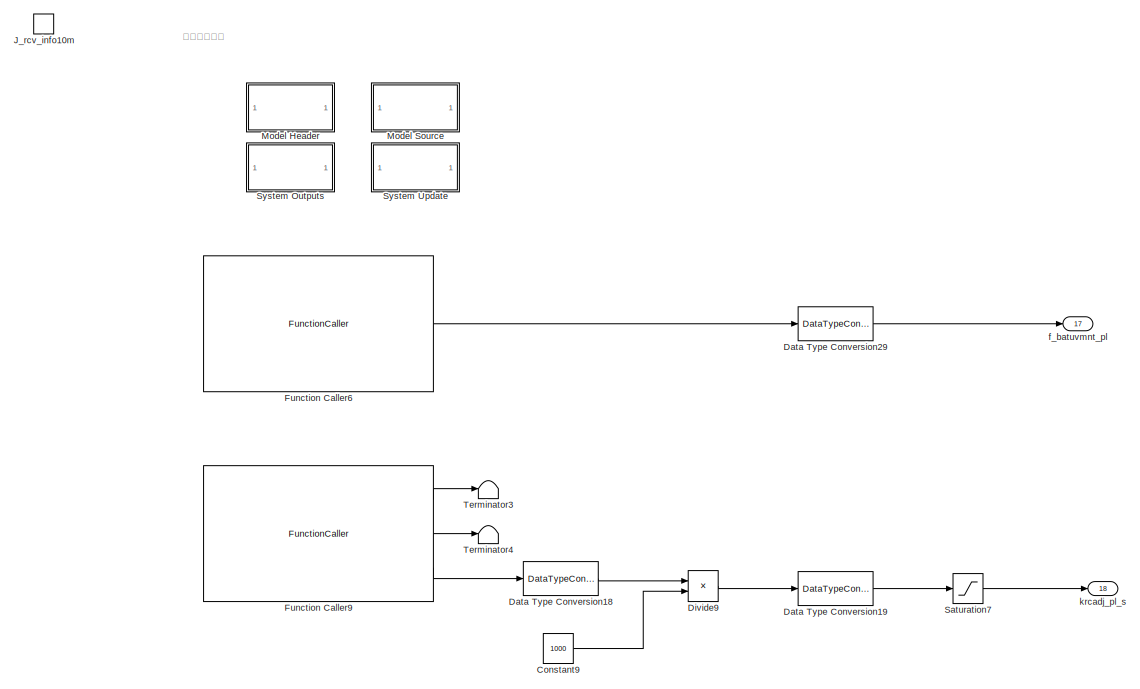
[diagram: Simulink Function - part 1/6, top right region]
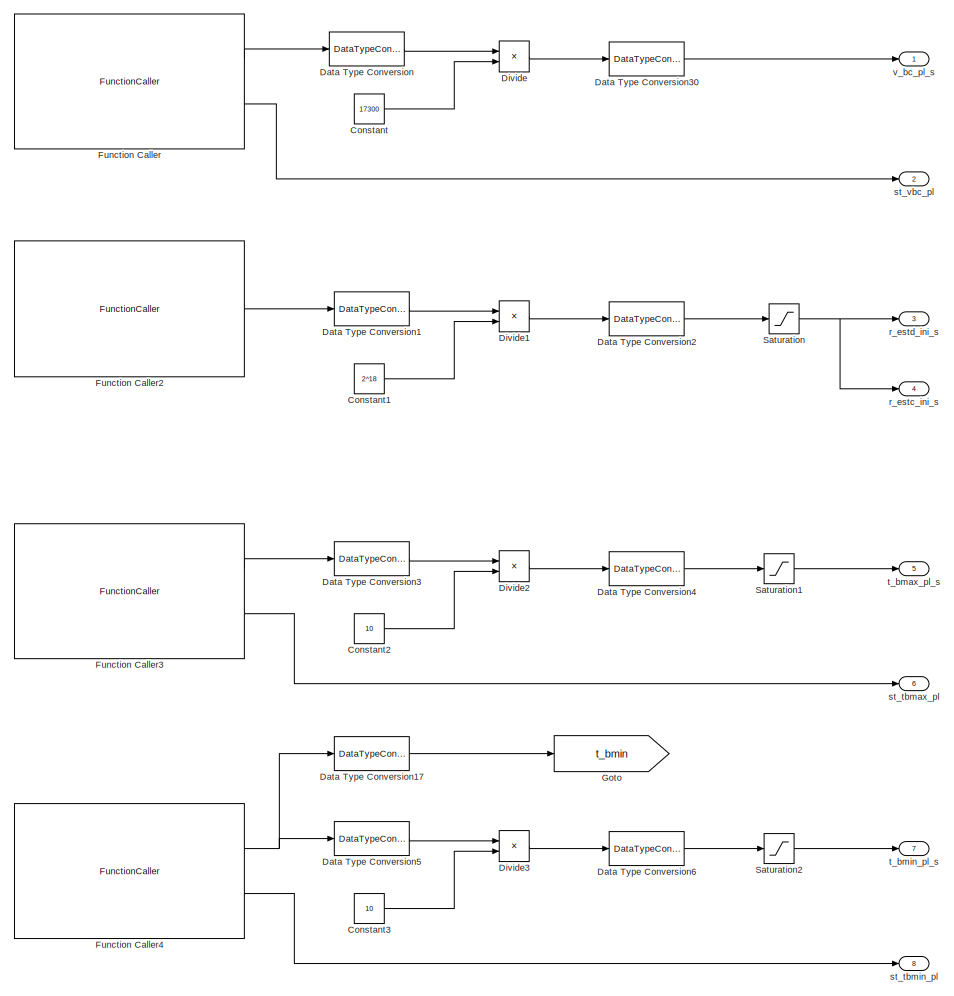
[diagram: Simulink Function - part 2/6, top left region]
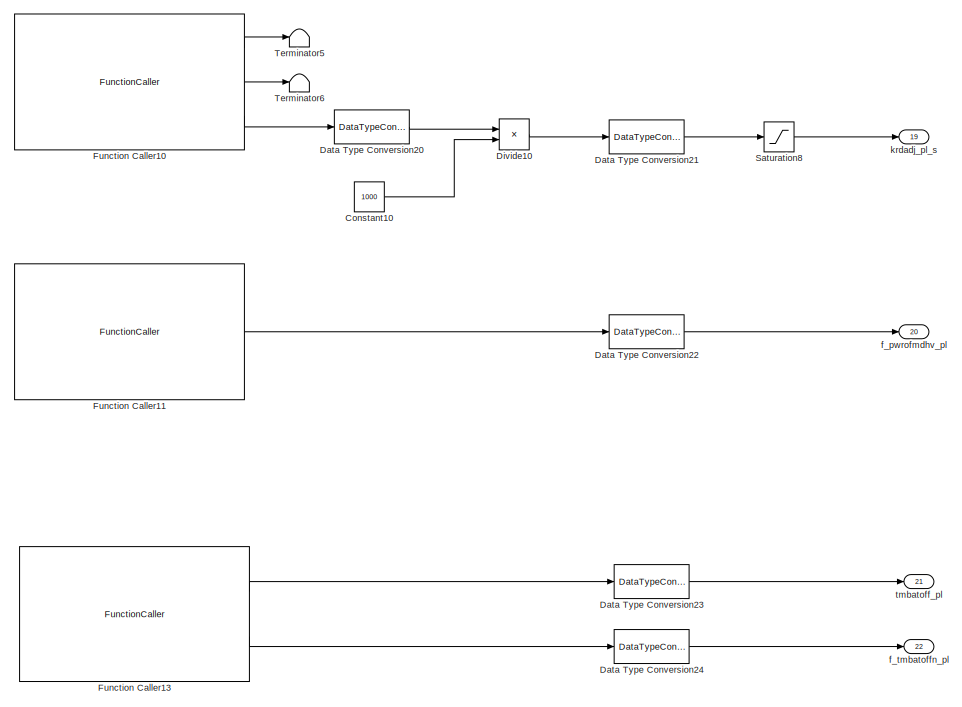
[diagram: Simulink Function - part 3/6, middle right region]
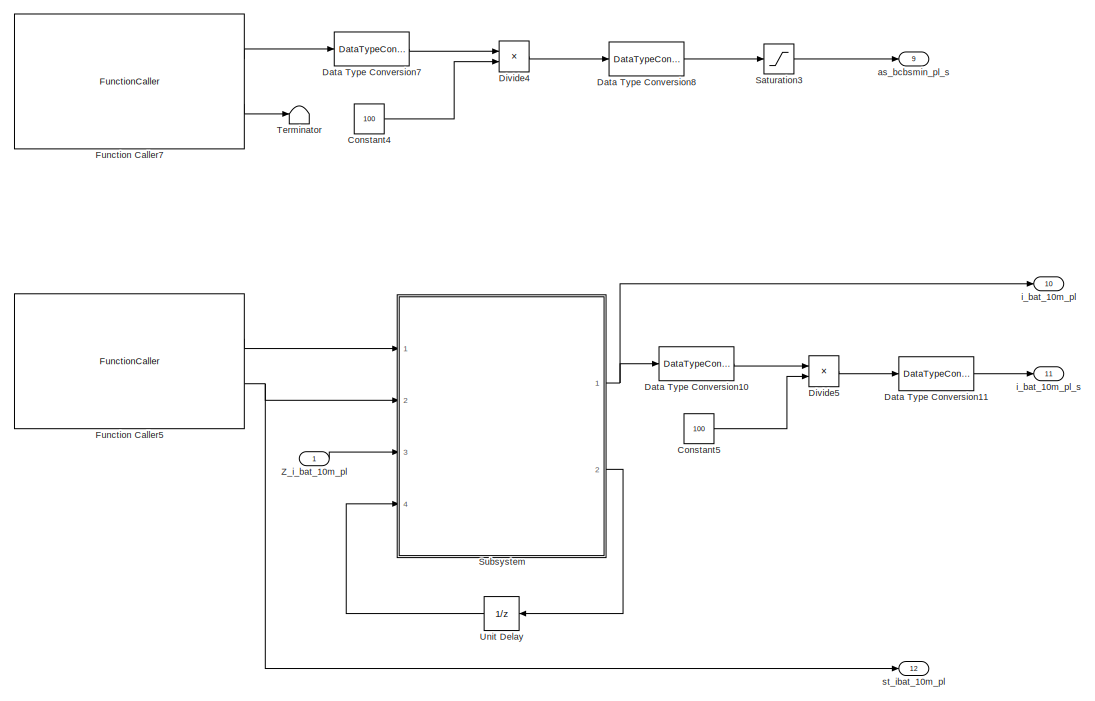
[diagram: Simulink Function - part 4/6, middle left region]
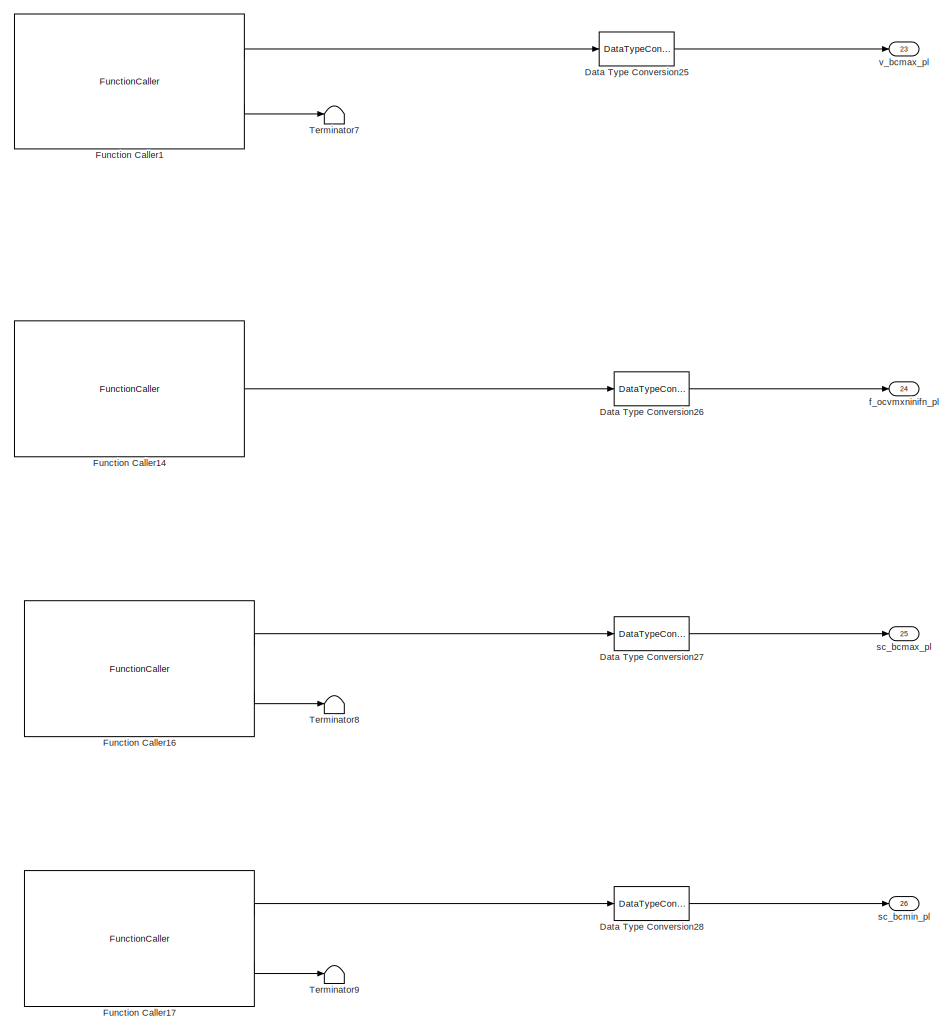
[diagram: Simulink Function - part 5/6, bottom right region]
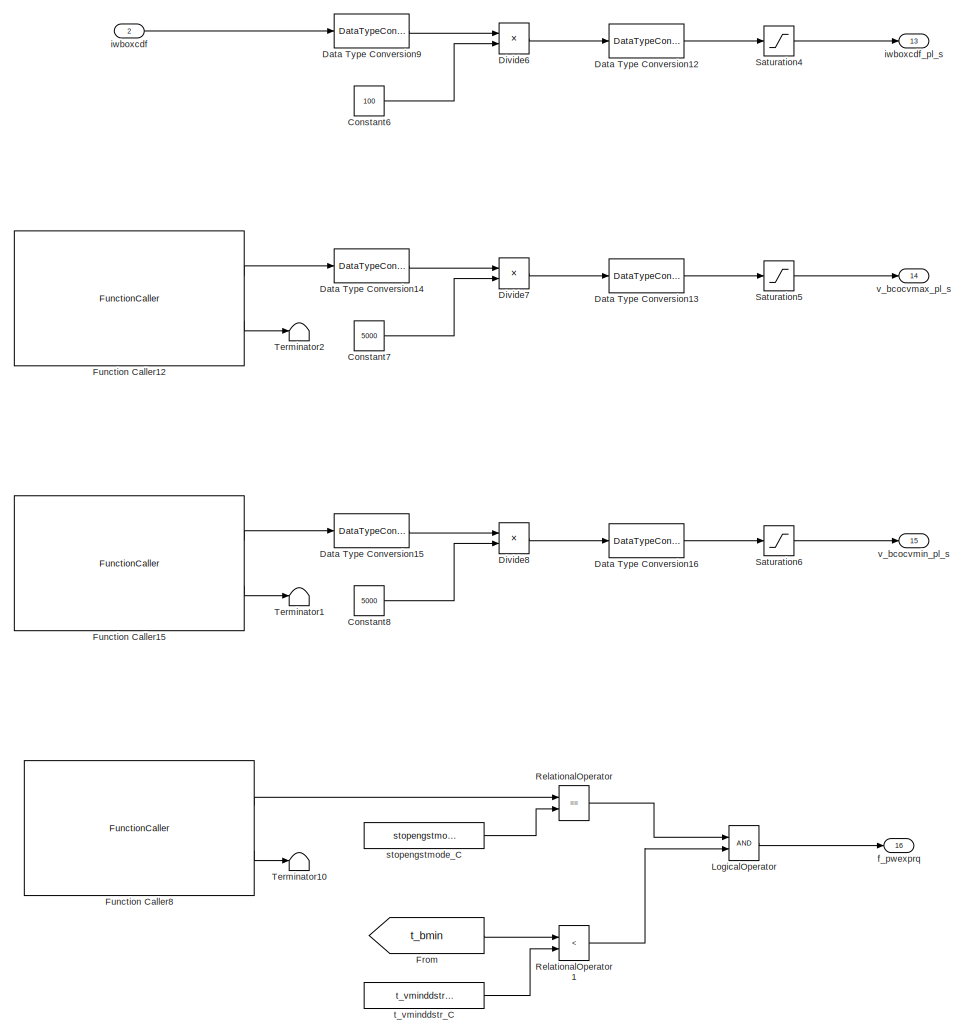
[diagram: Simulink Function - part 6/6, bottom left region]
BLOCK [SubSystem] Simulink Function
  Ports = [2, 26, 0, 1]
  RequestExecContextInheritance = off
  TreatAsAtomicUnit = on
BLOCK [Constant] Simulink Function/Constant
  AttributesFormatString = %<Tag>\nOutDataType = %<OutDataTypeStr>
  OutDataTypeStr = single
  Tag = #AMO_Lib
  Value = 17300
BLOCK [Constant] Simulink Function/Constant1
  AttributesFormatString = %<Tag>\nOutDataType = %<OutDataTypeStr>
  OutDataTypeStr = single
  Tag = #AMO_Lib
  Value = 2^18
BLOCK [Constant] Simulink Function/Constant10
  AttributesFormatString = %<Tag>\nOutDataType = %<OutDataTypeStr>
  OutDataTypeStr = single
  Tag = #AMO_Lib
  Value = 1000
BLOCK [Constant] Simulink Function/Constant2
  AttributesFormatString = %<Tag>\nOutDataType = %<OutDataTypeStr>
  OutDataTypeStr = single
  Tag = #AMO_Lib
  Value = 10
BLOCK [Constant] Simulink Function/Constant3
  AttributesFormatString = %<Tag>\nOutDataType = %<OutDataTypeStr>
  OutDataTypeStr = single
  Tag = #AMO_Lib
  Value = 10
BLOCK [Constant] Simulink Function/Constant4
  AttributesFormatString = %<Tag>\nOutDataType = %<OutDataTypeStr>
  OutDataTypeStr = single
  Tag = #AMO_Lib
  Value = 100
BLOCK [Constant] Simulink Function/Constant5
  AttributesFormatString = %<Tag>\nOutDataType = %<OutDataTypeStr>
  OutDataTypeStr = single
  Tag = #AMO_Lib
  Value = 100
BLOCK [Constant] Simulink Function/Constant6
  AttributesFormatString = %<Tag>\nOutDataType = %<OutDataTypeStr>
  OutDataTypeStr = single
  Tag = #AMO_Lib
  Value = 100
BLOCK [Constant] Simulink Function/Constant7
  AttributesFormatString = %<Tag>\nOutDataType = %<OutDataTypeStr>
  OutDataTypeStr = single
  Tag = #AMO_Lib
  Value = 5000
BLOCK [Constant] Simulink Function/Constant8
  AttributesFormatString = %<Tag>\nOutDataType = %<OutDataTypeStr>
  OutDataTypeStr = single
  Tag = #AMO_Lib
  Value = 5000
BLOCK [Constant] Simulink Function/Constant9
  AttributesFormatString = %<Tag>\nOutDataType = %<OutDataTypeStr>
  OutDataTypeStr = single
  Tag = #AMO_Lib
  Value = 1000
BLOCK [DataTypeConversion] Simulink Function/Data Type Conversion
  AttributesFormatString = %<Tag>\nOutDataType = %<OutDataTypeStr>
  ConvertRealWorld = Stored Integer (SI)
  OutDataTypeStr = single
  OutMax = OutMax
  OutMin = OutMin
  SampleTime = SampleTime
  Tag = #AMO_Lib
BLOCK [DataTypeConversion] Simulink Function/Data Type Conversion1
  AttributesFormatString = %<Tag>\nOutDataType = %<OutDataTypeStr>
  ConvertRealWorld = Stored Integer (SI)
  OutDataTypeStr = single
  OutMax = OutMax
  OutMin = OutMin
  SampleTime = SampleTime
  Tag = #AMO_Lib
BLOCK [DataTypeConversion] Simulink Function/Data Type Conversion10
  AttributesFormatString = %<Tag>\nOutDataType = %<OutDataTypeStr>
  ConvertRealWorld = Stored Integer (SI)
  OutDataTypeStr = single
  OutMax = OutMax
  OutMin = OutMin
  SampleTime = SampleTime
  Tag = #AMO_Lib
BLOCK [DataTypeConversion] Simulink Function/Data Type Conversion11
  AttributesFormatString = %<Tag>\nOutDataType = %<OutDataTypeStr>
  OutDataTypeStr = TSB_Dc_float
  OutMax = OutMax
  OutMin = OutMin
  SampleTime = SampleTime
  Tag = #AMO_Lib
BLOCK [DataTypeConversion] Simulink Function/Data Type Conversion12
  AttributesFormatString = %<Tag>\nOutDataType = %<OutDataTypeStr>
  OutDataTypeStr = TSB_Pwr_float
  OutMax = OutMax
  OutMin = OutMin
  SampleTime = SampleTime
  Tag = #AMO_Lib
BLOCK [DataTypeConversion] Simulink Function/Data Type Conversion13
  AttributesFormatString = %<Tag>\nOutDataType = %<OutDataTypeStr>
  OutDataTypeStr = TSB_Volt_float
  OutMax = OutMax
  OutMin = OutMin
  SampleTime = SampleTime
  Tag = #AMO_Lib
BLOCK [DataTypeConversion] Simulink Function/Data Type Conversion14
  AttributesFormatString = %<Tag>\nOutDataType = %<OutDataTypeStr>
  ConvertRealWorld = Stored Integer (SI)
  OutDataTypeStr = single
  OutMax = OutMax
  OutMin = OutMin
  SampleTime = SampleTime
  Tag = #AMO_Lib
BLOCK [DataTypeConversion] Simulink Function/Data Type Conversion15
  AttributesFormatString = %<Tag>\nOutDataType = %<OutDataTypeStr>
  ConvertRealWorld = Stored Integer (SI)
  OutDataTypeStr = single
  OutMax = OutMax
  OutMin = OutMin
  SampleTime = SampleTime
  Tag = #AMO_Lib
BLOCK [DataTypeConversion] Simulink Function/Data Type Conversion16
  AttributesFormatString = %<Tag>\nOutDataType = %<OutDataTypeStr>
  OutDataTypeStr = TSB_Volt_float
  OutMax = OutMax
  OutMin = OutMin
  SampleTime = SampleTime
  Tag = #AMO_Lib
BLOCK [DataTypeConversion] Simulink Function/Data Type Conversion17
  AttributesFormatString = %<Tag>\nOutDataType = %<OutDataTypeStr>
  ConvertRealWorld = Stored Integer (SI)
  OutDataTypeStr = TSB_Tbatt
  OutMax = OutMax
  OutMin = OutMin
  SampleTime = SampleTime
  Tag = #AMO_Lib
BLOCK [DataTypeConversion] Simulink Function/Data Type Conversion18
  AttributesFormatString = %<Tag>\nOutDataType = %<OutDataTypeStr>
  ConvertRealWorld = Stored Integer (SI)
  OutDataTypeStr = single
  OutMax = OutMax
  OutMin = OutMin
  SampleTime = SampleTime
  Tag = #AMO_Lib
BLOCK [DataTypeConversion] Simulink Function/Data Type Conversion19
  AttributesFormatString = %<Tag>\nOutDataType = %<OutDataTypeStr>
  OutDataTypeStr = TSB_value_float
  OutMax = OutMax
  OutMin = OutMin
  SampleTime = SampleTime
  Tag = #AMO_Lib
BLOCK [DataTypeConversion] Simulink Function/Data Type Conversion2
  AttributesFormatString = %<Tag>\nOutDataType = %<OutDataTypeStr>
  OutDataTypeStr = TSB_R_float
  OutMax = OutMax
  OutMin = OutMin
  SampleTime = SampleTime
  Tag = #AMO_Lib
BLOCK [DataTypeConversion] Simulink Function/Data Type Conversion20
  AttributesFormatString = %<Tag>\nOutDataType = %<OutDataTypeStr>
  ConvertRealWorld = Stored Integer (SI)
  OutDataTypeStr = single
  OutMax = OutMax
  OutMin = OutMin
  SampleTime = SampleTime
  Tag = #AMO_Lib
BLOCK [DataTypeConversion] Simulink Function/Data Type Conversion21
  AttributesFormatString = %<Tag>\nOutDataType = %<OutDataTypeStr>
  OutDataTypeStr = TSB_value_float
  OutMax = OutMax
  OutMin = OutMin
  SampleTime = SampleTime
  Tag = #AMO_Lib
BLOCK [DataTypeConversion] Simulink Function/Data Type Conversion22
  AttributesFormatString = %<Tag>\nOutDataType = %<OutDataTypeStr>
  OutMax = OutMax
  OutMin = OutMin
  SampleTime = SampleTime
  Tag = #AMO_Lib
BLOCK [DataTypeConversion] Simulink Function/Data Type Conversion23
  AttributesFormatString = %<Tag>\nOutDataType = %<OutDataTypeStr>
  OutMax = OutMax
  OutMin = OutMin
  SampleTime = SampleTime
  Tag = #AMO_Lib
BLOCK [DataTypeConversion] Simulink Function/Data Type Conversion24
  AttributesFormatString = %<Tag>\nOutDataType = %<OutDataTypeStr>
  OutMax = OutMax
  OutMin = OutMin
  SampleTime = SampleTime
  Tag = #AMO_Lib
BLOCK [DataTypeConversion] Simulink Function/Data Type Conversion25
  AttributesFormatString = %<Tag>\nOutDataType = %<OutDataTypeStr>
  ConvertRealWorld = Stored Integer (SI)
  OutMax = OutMax
  OutMin = OutMin
  SampleTime = SampleTime
  Tag = #AMO_Lib
BLOCK [DataTypeConversion] Simulink Function/Data Type Conversion26
  AttributesFormatString = %<Tag>\nOutDataType = %<OutDataTypeStr>
  OutMax = OutMax
  OutMin = OutMin
  SampleTime = SampleTime
  Tag = #AMO_Lib
BLOCK [DataTypeConversion] Simulink Function/Data Type Conversion27
  AttributesFormatString = %<Tag>\nOutDataType = %<OutDataTypeStr>
  ConvertRealWorld = Stored Integer (SI)
  OutDataTypeStr = TSB_Soc
  OutMax = OutMax
  OutMin = OutMin
  SampleTime = SampleTime
  Tag = #AMO_Lib
BLOCK [DataTypeConversion] Simulink Function/Data Type Conversion28
  AttributesFormatString = %<Tag>\nOutDataType = %<OutDataTypeStr>
  ConvertRealWorld = Stored Integer (SI)
  OutDataTypeStr = TSB_Soc
  OutMax = OutMax
  OutMin = OutMin
  SampleTime = SampleTime
  Tag = #AMO_Lib
BLOCK [DataTypeConversion] Simulink Function/Data Type Conversion29
  AttributesFormatString = %<Tag>\nOutDataType = %<OutDataTypeStr>
  OutMax = OutMax
  OutMin = OutMin
  SampleTime = SampleTime
  Tag = #AMO_Lib
BLOCK [DataTypeConversion] Simulink Function/Data Type Conversion3
  AttributesFormatString = %<Tag>\nOutDataType = %<OutDataTypeStr>
  ConvertRealWorld = Stored Integer (SI)
  OutDataTypeStr = single
  OutMax = OutMax
  OutMin = OutMin
  SampleTime = SampleTime
  Tag = #AMO_Lib
BLOCK [DataTypeConversion] Simulink Function/Data Type Conversion30
  AttributesFormatString = %<Tag>\nOutDataType = %<OutDataTypeStr>
  OutDataTypeStr = TSB_Volt_float
  OutMax = OutMax
  OutMin = OutMin
  SampleTime = SampleTime
  Tag = #AMO_Lib
BLOCK [DataTypeConversion] Simulink Function/Data Type Conversion4
  AttributesFormatString = %<Tag>\nOutDataType = %<OutDataTypeStr>
  OutDataTypeStr = TSB_Tbatt_float
  OutMax = OutMax
  OutMin = OutMin
  SampleTime = SampleTime
  Tag = #AMO_Lib
BLOCK [DataTypeConversion] Simulink Function/Data Type Conversion5
  AttributesFormatString = %<Tag>\nOutDataType = %<OutDataTypeStr>
  ConvertRealWorld = Stored Integer (SI)
  OutDataTypeStr = single
  OutMax = OutMax
  OutMin = OutMin
  SampleTime = SampleTime
  Tag = #AMO_Lib
BLOCK [DataTypeConversion] Simulink Function/Data Type Conversion6
  AttributesFormatString = %<Tag>\nOutDataType = %<OutDataTypeStr>
  OutDataTypeStr = TSB_Tbatt_float
  OutMax = OutMax
  OutMin = OutMin
  SampleTime = SampleTime
  Tag = #AMO_Lib
BLOCK [DataTypeConversion] Simulink Function/Data Type Conversion7
  AttributesFormatString = %<Tag>\nOutDataType = %<OutDataTypeStr>
  ConvertRealWorld = Stored Integer (SI)
  OutDataTypeStr = single
  OutMax = OutMax
  OutMin = OutMin
  SampleTime = SampleTime
  Tag = #AMO_Lib
BLOCK [DataTypeConversion] Simulink Function/Data Type Conversion8
  AttributesFormatString = %<Tag>\nOutDataType = %<OutDataTypeStr>
  OutDataTypeStr = TSB_Coulomb_float
  OutMax = OutMax
  OutMin = OutMin
  SampleTime = SampleTime
  Tag = #AMO_Lib
BLOCK [DataTypeConversion] Simulink Function/Data Type Conversion9
  AttributesFormatString = %<Tag>\nOutDataType = %<OutDataTypeStr>
  ConvertRealWorld = Stored Integer (SI)
  OutDataTypeStr = single
  OutMax = OutMax
  OutMin = OutMin
  SampleTime = SampleTime
  Tag = #AMO_Lib
BLOCK [Product] Simulink Function/Divide
  AttributesFormatString = %<Tag>\nOutDataType = %<OutDataTypeStr>
  CollapseDim = CollapseDim
  InputSameDT = off
  Inputs = */
  OutDataTypeStr = Inherit: Inherit via internal rule
  OutMax = OutMax
  OutMin = OutMin
  Ports = [2, 1]
  SampleTime = SampleTime
  Tag = #AMO_Lib
BLOCK [Product] Simulink Function/Divide1
  AttributesFormatString = %<Tag>\nOutDataType = %<OutDataTypeStr>
  CollapseDim = CollapseDim
  InputSameDT = off
  Inputs = */
  OutDataTypeStr = Inherit: Inherit via internal rule
  OutMax = OutMax
  OutMin = OutMin
  Ports = [2, 1]
  SampleTime = SampleTime
  Tag = #AMO_Lib
BLOCK [Product] Simulink Function/Divide10
  AttributesFormatString = %<Tag>\nOutDataType = %<OutDataTypeStr>
  CollapseDim = CollapseDim
  InputSameDT = off
  Inputs = */
  OutDataTypeStr = Inherit: Inherit via internal rule
  OutMax = OutMax
  OutMin = OutMin
  Ports = [2, 1]
  SampleTime = SampleTime
  Tag = #AMO_Lib
BLOCK [Product] Simulink Function/Divide2
  AttributesFormatString = %<Tag>\nOutDataType = %<OutDataTypeStr>
  CollapseDim = CollapseDim
  InputSameDT = off
  Inputs = */
  OutDataTypeStr = Inherit: Inherit via internal rule
  OutMax = OutMax
  OutMin = OutMin
  Ports = [2, 1]
  SampleTime = SampleTime
  Tag = #AMO_Lib
BLOCK [Product] Simulink Function/Divide3
  AttributesFormatString = %<Tag>\nOutDataType = %<OutDataTypeStr>
  CollapseDim = CollapseDim
  InputSameDT = off
  Inputs = */
  OutDataTypeStr = Inherit: Inherit via internal rule
  OutMax = OutMax
  OutMin = OutMin
  Ports = [2, 1]
  SampleTime = SampleTime
  Tag = #AMO_Lib
BLOCK [Product] Simulink Function/Divide4
  AttributesFormatString = %<Tag>\nOutDataType = %<OutDataTypeStr>
  CollapseDim = CollapseDim
  InputSameDT = off
  Inputs = */
  OutDataTypeStr = Inherit: Inherit via internal rule
  OutMax = OutMax
  OutMin = OutMin
  Ports = [2, 1]
  SampleTime = SampleTime
  Tag = #AMO_Lib
BLOCK [Product] Simulink Function/Divide5
  AttributesFormatString = %<Tag>\nOutDataType = %<OutDataTypeStr>
  CollapseDim = CollapseDim
  InputSameDT = off
  Inputs = */
  OutDataTypeStr = Inherit: Inherit via internal rule
  OutMax = OutMax
  OutMin = OutMin
  Ports = [2, 1]
  SampleTime = SampleTime
  Tag = #AMO_Lib
BLOCK [Product] Simulink Function/Divide6
  AttributesFormatString = %<Tag>\nOutDataType = %<OutDataTypeStr>
  CollapseDim = CollapseDim
  InputSameDT = off
  Inputs = */
  OutDataTypeStr = Inherit: Inherit via internal rule
  OutMax = OutMax
  OutMin = OutMin
  Ports = [2, 1]
  SampleTime = SampleTime
  Tag = #AMO_Lib
BLOCK [Product] Simulink Function/Divide7
  AttributesFormatString = %<Tag>\nOutDataType = %<OutDataTypeStr>
  CollapseDim = CollapseDim
  InputSameDT = off
  Inputs = */
  OutDataTypeStr = Inherit: Inherit via internal rule
  OutMax = OutMax
  OutMin = OutMin
  Ports = [2, 1]
  SampleTime = SampleTime
  Tag = #AMO_Lib
BLOCK [Product] Simulink Function/Divide8
  AttributesFormatString = %<Tag>\nOutDataType = %<OutDataTypeStr>
  CollapseDim = CollapseDim
  InputSameDT = off
  Inputs = */
  OutDataTypeStr = Inherit: Inherit via internal rule
  OutMax = OutMax
  OutMin = OutMin
  Ports = [2, 1]
  SampleTime = SampleTime
  Tag = #AMO_Lib
BLOCK [Product] Simulink Function/Divide9
  AttributesFormatString = %<Tag>\nOutDataType = %<OutDataTypeStr>
  CollapseDim = CollapseDim
  InputSameDT = off
  Inputs = */
  OutDataTypeStr = Inherit: Inherit via internal rule
  OutMax = OutMax
  OutMin = OutMin
  Ports = [2, 1]
  SampleTime = SampleTime
  Tag = #AMO_Lib
BLOCK [From] Simulink Function/From
  GotoTag = t_bmin
BLOCK [FunctionCaller] Simulink Function/Function Caller
  FunctionPrototype = [S15,U08] = J_get_vbc()
  InputArgumentSpecifications = <Enter example>
  OutputArgumentSpecifications = int16(ones(1,14)),uint8(1)
  Ports = [0, 2]
BLOCK [FunctionCaller] Simulink Function/Function Caller1
  FunctionPrototype = [S15,U08] = J_get_vbcmax()
  InputArgumentSpecifications = <Enter example>
  OutputArgumentSpecifications = int16(1),uint8(1)
  Ports = [0, 2]
BLOCK [FunctionCaller] Simulink Function/Function Caller10
  FunctionPrototype = [S31_1,U08,S31_2] = J_get_rbccaldmax()
  InputArgumentSpecifications = <Enter example>
  OutputArgumentSpecifications = int32(1),uint8(1),int32(1)
  Ports = [0, 3]
BLOCK [FunctionCaller] Simulink Function/Function Caller11
  FunctionPrototype = FLG1 = J_get_pwrofmd()
  InputArgumentSpecifications = <Enter example>
  OutputArgumentSpecifications = boolean(1)
  Ports = [0, 1]
BLOCK [FunctionCaller] Simulink Function/Function Caller12
  FunctionPrototype = [S15,U08] = J_get_vbcocvmax()
  InputArgumentSpecifications = <Enter example>
  OutputArgumentSpecifications = int16(1),uint8(1)
  Ports = [0, 2]
BLOCK [FunctionCaller] Simulink Function/Function Caller13
  FunctionPrototype = [U32,FLG] = J_get_tmbatoff()
  InputArgumentSpecifications = <Enter example>
  OutputArgumentSpecifications = uint32(1),boolean(1)
  Ports = [0, 2]
BLOCK [FunctionCaller] Simulink Function/Function Caller14
  FunctionPrototype = FLG = J_get_ocvmxninifn()
  InputArgumentSpecifications = <Enter example>
  OutputArgumentSpecifications = boolean(1)
  Ports = [0, 1]
BLOCK [FunctionCaller] Simulink Function/Function Caller15
  FunctionPrototype = [S15,U08] = J_get_vbcocvmin()
  InputArgumentSpecifications = <Enter example>
  OutputArgumentSpecifications = int16(1),uint8(1)
  Ports = [0, 2]
BLOCK [FunctionCaller] Simulink Function/Function Caller16
  FunctionPrototype = [sc_bcmax,st_scsoc] = J_get_scbcmax()
  InputArgumentSpecifications = <Enter example>
  OutputArgumentSpecifications = int16(1),uint8(1)
  Ports = [0, 2]
BLOCK [FunctionCaller] Simulink Function/Function Caller17
  FunctionPrototype = [sc_bcmin,st_scsoc] = J_get_scbcmin()
  InputArgumentSpecifications = <Enter example>
  OutputArgumentSpecifications = int16(1),uint8(1)
  Ports = [0, 2]
BLOCK [FunctionCaller] Simulink Function/Function Caller2
  FunctionPrototype = U16 = J_get_rbcrefini()
  InputArgumentSpecifications = <Enter example>
  OutputArgumentSpecifications = uint16(1)
  Ports = [0, 1]
BLOCK [FunctionCaller] Simulink Function/Function Caller3
  FunctionPrototype = [S15,U08] = J_get_tbmax()
  InputArgumentSpecifications = <Enter example>
  OutputArgumentSpecifications = int16(1),uint8(1)
  Ports = [0, 2]
BLOCK [FunctionCaller] Simulink Function/Function Caller4
  FunctionPrototype = [S15,U08] = J_get_tbmin()
  InputArgumentSpecifications = <Enter example>
  OutputArgumentSpecifications = int16(1),uint8(1)
  Ports = [0, 2]
BLOCK [FunctionCaller] Simulink Function/Function Caller5
  FunctionPrototype = [S15,U08] = J_get_ibat()
  InputArgumentSpecifications = <Enter example>
  OutputArgumentSpecifications = int16(1),uint8(1)
  Ports = [0, 2]
BLOCK [FunctionCaller] Simulink Function/Function Caller6
  FunctionPrototype = FLG = J_get_f_batuvmnt()
  InputArgumentSpecifications = <Enter example>
  OutputArgumentSpecifications = boolean(1)
  Ports = [0, 1]
BLOCK [FunctionCaller] Simulink Function/Function Caller7
  FunctionPrototype = [S31,U08] = J_get_asbcbasemin()
  InputArgumentSpecifications = <Enter example>
  OutputArgumentSpecifications = int32(1),uint8(1)
  Ports = [0, 2]
BLOCK [FunctionCaller] Simulink Function/Function Caller8
  FunctionPrototype = [U08_1,U08_2] = J_get_stimaop()
  InputArgumentSpecifications = <Enter example>
  OutputArgumentSpecifications = uint8(1),uint8(1)
  Ports = [0, 2]
BLOCK [FunctionCaller] Simulink Function/Function Caller9
  FunctionPrototype = [S31_1,U08,S31_2] = J_get_rbccalcmax()
  InputArgumentSpecifications = <Enter example>
  OutputArgumentSpecifications = int32(1),uint8(1),int32(1)
  Ports = [0, 3]
BLOCK [Goto] Simulink Function/Goto
  AttributesFormatString = %<Tag>
  GotoTag = t_bmin
  Tag = #AMO_Lib
BLOCK [TriggerPort] Simulink Function/J_rcv_info10m
  FunctionName = J_rcv_info10m
  IsSimulinkFunction = on
  Ports = []
  StatesWhenEnabling = held
  TriggerType = function-call
  VariantControl = (inherit)
BLOCK [Logic] Simulink Function/LogicalOperator
  AttributesFormatString = %<Tag>
  Inputs = Inputs
  OutDataTypeStr = boolean
  Ports = [2, 1]
  SampleTime = SampleTime
  Tag = #AMO_Lib
BLOCK [SubSystem] Simulink Function/Model Header
  CopyFcn = cccopyfcn(gcb)
  OpenFcn = ccopenfcn('Model Header')
  Ports = []
  RequestExecContextInheritance = off
BLOCK [SubSystem] Simulink Function/Model Source
  CopyFcn = cccopyfcn(gcb)
  OpenFcn = ccopenfcn('Model Source')
  Ports = []
  RequestExecContextInheritance = off
BLOCK [RelationalOperator] Simulink Function/RelationalOperator
  AttributesFormatString = %<Tag>
  Operator = ==
  OutDataTypeStr = boolean
  Ports = [2, 1]
  RndMeth = Zero
  SampleTime = SampleTime
  Tag = #AMO_Lib
BLOCK [RelationalOperator] Simulink Function/RelationalOperator1
  AttributesFormatString = %<Tag>
  Operator = <
  OutDataTypeStr = boolean
  Ports = [2, 1]
  RndMeth = Zero
  SampleTime = SampleTime
  Tag = #AMO_Lib
BLOCK [Saturate] Simulink Function/Saturation
  AttributesFormatString = %<Tag>\n%<LowerLimit> - %<UpperLimit>\nOutDataType = %<OutDataTypeStr>
  InputPortMap = u0
  LowerLimit = LowerLimit
  OutMax = OutMax
  OutMin = OutMin
  Ports = [1, 1]
  RndMeth = Zero
  SampleTime = SampleTime
  Tag = #AMO_Lib
  UpperLimit = UpperLimit
BLOCK [Saturate] Simulink Function/Saturation1
  AttributesFormatString = %<Tag>\n%<LowerLimit> - %<UpperLimit>\nOutDataType = %<OutDataTypeStr>
  InputPortMap = u0
  LowerLimit = LowerLimit
  OutMax = OutMax
  OutMin = OutMin
  Ports = [1, 1]
  RndMeth = Zero
  SampleTime = SampleTime
  Tag = #AMO_Lib
  UpperLimit = UpperLimit
BLOCK [Saturate] Simulink Function/Saturation2
  AttributesFormatString = %<Tag>\n%<LowerLimit> - %<UpperLimit>\nOutDataType = %<OutDataTypeStr>
  InputPortMap = u0
  LowerLimit = LowerLimit
  OutMax = OutMax
  OutMin = OutMin
  Ports = [1, 1]
  RndMeth = Zero
  SampleTime = SampleTime
  Tag = #AMO_Lib
  UpperLimit = UpperLimit
BLOCK [Saturate] Simulink Function/Saturation3
  AttributesFormatString = %<Tag>\n%<LowerLimit> - %<UpperLimit>\nOutDataType = %<OutDataTypeStr>
  InputPortMap = u0
  LowerLimit = LowerLimit
  OutMax = OutMax
  OutMin = OutMin
  Ports = [1, 1]
  RndMeth = Zero
  SampleTime = SampleTime
  Tag = #AMO_Lib
  UpperLimit = UpperLimit
BLOCK [Saturate] Simulink Function/Saturation4
  AttributesFormatString = %<Tag>\n%<LowerLimit> - %<UpperLimit>\nOutDataType = %<OutDataTypeStr>
  InputPortMap = u0
  LowerLimit = LowerLimit
  OutMax = OutMax
  OutMin = OutMin
  Ports = [1, 1]
  RndMeth = Zero
  SampleTime = SampleTime
  Tag = #AMO_Lib
  UpperLimit = UpperLimit
BLOCK [Saturate] Simulink Function/Saturation5
  AttributesFormatString = %<Tag>\n%<LowerLimit> - %<UpperLimit>\nOutDataType = %<OutDataTypeStr>
  InputPortMap = u0
  LowerLimit = LowerLimit
  OutMax = OutMax
  OutMin = OutMin
  Ports = [1, 1]
  RndMeth = Zero
  SampleTime = SampleTime
  Tag = #AMO_Lib
  UpperLimit = UpperLimit
BLOCK [Saturate] Simulink Function/Saturation6
  AttributesFormatString = %<Tag>\n%<LowerLimit> - %<UpperLimit>\nOutDataType = %<OutDataTypeStr>
  InputPortMap = u0
  LowerLimit = LowerLimit
  OutMax = OutMax
  OutMin = OutMin
  Ports = [1, 1]
  RndMeth = Zero
  SampleTime = SampleTime
  Tag = #AMO_Lib
  UpperLimit = UpperLimit
BLOCK [Saturate] Simulink Function/Saturation7
  AttributesFormatString = %<Tag>\n%<LowerLimit> - %<UpperLimit>\nOutDataType = %<OutDataTypeStr>
  InputPortMap = u0
  LowerLimit = LowerLimit
  OutMax = OutMax
  OutMin = OutMin
  Ports = [1, 1]
  RndMeth = Zero
  SampleTime = SampleTime
  Tag = #AMO_Lib
  UpperLimit = UpperLimit
BLOCK [Saturate] Simulink Function/Saturation8
  AttributesFormatString = %<Tag>\n%<LowerLimit> - %<UpperLimit>\nOutDataType = %<OutDataTypeStr>
  InputPortMap = u0
  LowerLimit = LowerLimit
  OutMax = OutMax
  OutMin = OutMin
  Ports = [1, 1]
  RndMeth = Zero
  SampleTime = SampleTime
  Tag = #AMO_Lib
  UpperLimit = UpperLimit
BLOCK [SubSystem] Simulink Function/Subsystem
  Ports = [4, 2]
  RequestExecContextInheritance = off
BLOCK [Reference] Simulink Function/Subsystem/Compare_To_Constant  REF=AMO_Block_Library/AMO_Original_Blocks/CompareTo/Compare_To_Constant
  AttributesFormatString = %<Tag>\n比較定数のデータ型： %<OutDataTypeStr_constant>
  Ports = [1, 1]
  SourceBlock = AMO_Block_Library/AMO_Original_Blocks/CompareTo/Compare_To_Constant
  SourceProductName = AMO_Block_Library
  SourceType = CompareToConstant
  Tag = #AMO_Lib
BLOCK [Reference] Simulink Function/Subsystem/Compare_To_Constant1  REF=AMO_Block_Library/AMO_Original_Blocks/CompareTo/Compare_To_Constant
  AttributesFormatString = %<Tag>\n比較定数のデータ型： %<OutDataTypeStr_constant>
  Ports = [1, 1]
  SourceBlock = AMO_Block_Library/AMO_Original_Blocks/CompareTo/Compare_To_Constant
  SourceProductName = AMO_Block_Library
  SourceType = CompareToConstant
  Tag = #AMO_Lib
BLOCK [DataTypeConversion] Simulink Function/Subsystem/Data Type Conversion3
  AttributesFormatString = %<Tag>\nOutDataType = %<OutDataTypeStr>
  ConvertRealWorld = Stored Integer (SI)
  OutMax = OutMax
  OutMin = OutMin
  SampleTime = SampleTime
  Tag = #AMO_Lib
BLOCK [If] Simulink Function/Subsystem/If
  AttributesFormatString = %<Tag>
  ElseIfExpressions = u2 ~= 0
  IfExpression = u1 ~= 0
  NumInputs = 2
  Ports = [2, 3]
  Tag = #AMO_Lib
BLOCK [SubSystem] Simulink Function/Subsystem/If Action Subsystem
  AttributesFormatString = SampleTime = %<SystemSampleTime>
  Ports = [3, 2, 0, 0, 0, 0, 0, 1]
  RequestExecContextInheritance = off
  TreatAsAtomicUnit = on
BLOCK [ActionPort] Simulink Function/Subsystem/If Action Subsystem/Action Port
  ActionPortLabel = if(u1 ~= 0)
  AttributesFormatString = %<Tag>\nInitializeStates = %<InitializeStates>
  Tag = #AMO_Lib
BLOCK [DataTypeConversion] Simulink Function/Subsystem/If Action Subsystem/Data Type Conversion
  AttributesFormatString = %<Tag>\nOutDataType = %<OutDataTypeStr>
  ConvertRealWorld = Stored Integer (SI)
  OutMax = OutMax
  OutMin = OutMin
  SampleTime = SampleTime
  Tag = #AMO_Lib
BLOCK [DataTypeConversion] Simulink Function/Subsystem/If Action Subsystem/Data Type Conversion1
  AttributesFormatString = %<Tag>\nOutDataType = %<OutDataTypeStr>
  ConvertRealWorld = Stored Integer (SI)
  OutMax = OutMax
  OutMin = OutMin
  SampleTime = SampleTime
  Tag = #AMO_Lib
BLOCK [DataTypeConversion] Simulink Function/Subsystem/If Action Subsystem/Data Type Conversion2
  AttributesFormatString = %<Tag>\nOutDataType = %<OutDataTypeStr>
  ConvertRealWorld = Stored Integer (SI)
  OutMax = OutMax
  OutMin = OutMin
  SampleTime = SampleTime
  Tag = #AMO_Lib
BLOCK [FunctionCaller] Simulink Function/Subsystem/If Action Subsystem/Function Caller16
  FunctionPrototype = [S15_refout3,S31_refls] = GE_Cal_ref4s(S15_refhs,S31_refls,S15_obj3,U16_cref)
  InputArgumentSpecifications = int16(1),int32(1),int16(1),uint16(1)
  OutputArgumentSpecifications = int16(1),int32(1)
  Ports = [4, 2]
BLOCK [Inport] Simulink Function/Subsystem/If Action Subsystem/Z_i_bat_10m_pl
  AttributesFormatString = %<Tag>\n%<Description>\nSampleTime = %<SampleTime>
  IconDisplay = Port number
  Port = 2
  Tag = #AMO_Lib
BLOCK [Inport] Simulink Function/Subsystem/If Action Subsystem/Z_i_bat_10m_pll
  AttributesFormatString = %<Tag>\n%<Description>\nSampleTime = %<SampleTime>
  IconDisplay = Port number
  Port = 3
  Tag = #AMO_Lib
BLOCK [Inport] Simulink Function/Subsystem/If Action Subsystem/i_bat
  AttributesFormatString = %<Tag>\n%<Description>\nSampleTime = %<SampleTime>
  IconDisplay = Port number
  Tag = #AMO_Lib
BLOCK [Outport] Simulink Function/Subsystem/If Action Subsystem/i_bat_10m_pl
  AttributesFormatString = %<Tag>\n%<Description>\nInitialOutput = %<InitialOutput>
  IconDisplay = Port number
  Tag = #AMO_Lib
BLOCK [Outport] Simulink Function/Subsystem/If Action Subsystem/i_bat_10m_pll
  AttributesFormatString = %<Tag>\n%<Description>\nInitialOutput = %<InitialOutput>
  IconDisplay = Port number
  Port = 2
  Tag = #AMO_Lib
BLOCK [Constant] Simulink Function/Subsystem/If Action Subsystem/k_icalpl_C
  AttributesFormatString = %<Tag>\nOutDataType = %<OutDataTypeStr>
  Tag = #AMO_Lib
  Value = k_icalpl_C
BLOCK [SubSystem] Simulink Function/Subsystem/If Action Subsystem1
  AttributesFormatString = SampleTime = %<SystemSampleTime>
  Ports = [1, 2, 0, 0, 0, 0, 0, 1]
  RequestExecContextInheritance = off
  TreatAsAtomicUnit = on
BLOCK [ActionPort] Simulink Function/Subsystem/If Action Subsystem1/Action Port
  ActionPortLabel = elseif(u2 ~= 0)
  AttributesFormatString = %<Tag>\nInitializeStates = %<InitializeStates>
  Tag = #AMO_Lib
BLOCK [Inport] Simulink Function/Subsystem/If Action Subsystem1/Z_i_bat_10m_pll
  AttributesFormatString = %<Tag>\n%<Description>\nSampleTime = %<SampleTime>
  IconDisplay = Port number
  Tag = #AMO_Lib
BLOCK [Outport] Simulink Function/Subsystem/If Action Subsystem1/i_bat_10m_pl
  AttributesFormatString = %<Tag>\n%<Description>\nInitialOutput = %<InitialOutput>
  IconDisplay = Port number
  Tag = #AMO_Lib
BLOCK [Outport] Simulink Function/Subsystem/If Action Subsystem1/i_bat_10m_pll
  AttributesFormatString = %<Tag>\n%<Description>\nInitialOutput = %<InitialOutput>
  IconDisplay = Port number
  Port = 2
  Tag = #AMO_Lib
BLOCK [Constant] Simulink Function/Subsystem/If Action Subsystem1/ibatini_C
  AttributesFormatString = %<Tag>\nOutDataType = %<OutDataTypeStr>
  Tag = #AMO_Lib
  Value = ibatini_C
BLOCK [SubSystem] Simulink Function/Subsystem/If Action Subsystem2
  AttributesFormatString = SampleTime = %<SystemSampleTime>
  Ports = [2, 2, 0, 0, 0, 0, 0, 1]
  RequestExecContextInheritance = off
  TreatAsAtomicUnit = on
BLOCK [ActionPort] Simulink Function/Subsystem/If Action Subsystem2/Action Port
  ActionPortLabel = else
  AttributesFormatString = %<Tag>\nInitializeStates = %<InitializeStates>
  Tag = #AMO_Lib
BLOCK [DataTypeConversion] Simulink Function/Subsystem/If Action Subsystem2/Data Type Conversion
  AttributesFormatString = %<Tag>\nOutDataType = %<OutDataTypeStr>
  ConvertRealWorld = Stored Integer (SI)
  OutMax = OutMax
  OutMin = OutMin
  SampleTime = SampleTime
  Tag = #AMO_Lib
BLOCK [Inport] Simulink Function/Subsystem/If Action Subsystem2/Z_i_bat_10m_pl
  AttributesFormatString = %<Tag>\n%<Description>\nSampleTime = %<SampleTime>
  IconDisplay = Port number
  Tag = #AMO_Lib
BLOCK [Inport] Simulink Function/Subsystem/If Action Subsystem2/Z_i_bat_10m_pll
  AttributesFormatString = %<Tag>\n%<Description>\nSampleTime = %<SampleTime>
  IconDisplay = Port number
  Port = 2
  Tag = #AMO_Lib
BLOCK [Outport] Simulink Function/Subsystem/If Action Subsystem2/i_bat_10m_pl
  AttributesFormatString = %<Tag>\n%<Description>\nInitialOutput = %<InitialOutput>
  IconDisplay = Port number
  Tag = #AMO_Lib
BLOCK [Outport] Simulink Function/Subsystem/If Action Subsystem2/i_bat_10m_pll
  AttributesFormatString = %<Tag>\n%<Description>\nInitialOutput = %<InitialOutput>
  IconDisplay = Port number
  Port = 2
  Tag = #AMO_Lib
BLOCK [Merge] Simulink Function/Subsystem/Merge
  AttributesFormatString = %<Tag>\nInitialOutput = %<InitialOutput>
  InitialOutput = 0
  Inputs = 3
  Ports = [3, 1]
  Tag = #AMO_Lib
BLOCK [Merge] Simulink Function/Subsystem/Merge1
  AttributesFormatString = %<Tag>\nInitialOutput = %<InitialOutput>
  InitialOutput = 0
  Inputs = 3
  Ports = [3, 1]
  Tag = #AMO_Lib
BLOCK [Inport] Simulink Function/Subsystem/Z_i_bat_10m_pl
  AttributesFormatString = %<Tag>\n%<Description>\nSampleTime = %<SampleTime>
  IconDisplay = Port number
  Port = 3
  Tag = #AMO_Lib
BLOCK [Inport] Simulink Function/Subsystem/Z_i_bat_10m_pll
  AttributesFormatString = %<Tag>\n%<Description>\nSampleTime = %<SampleTime>
  IconDisplay = Port number
  Port = 4
  Tag = #AMO_Lib
BLOCK [Inport] Simulink Function/Subsystem/i_bat
  AttributesFormatString = %<Tag>\n%<Description>\nSampleTime = %<SampleTime>
  IconDisplay = Port number
  Tag = #AMO_Lib
BLOCK [Outport] Simulink Function/Subsystem/i_bat_10m_pl
  AttributesFormatString = %<Tag>\n%<Description>\nInitialOutput = %<InitialOutput>
  IconDisplay = Port number
  Tag = #AMO_Lib
BLOCK [Outport] Simulink Function/Subsystem/i_bat_10m_pll
  AttributesFormatString = %<Tag>\n%<Description>\nInitialOutput = %<InitialOutput>
  IconDisplay = Port number
  Port = 2
  Tag = #AMO_Lib
BLOCK [Inport] Simulink Function/Subsystem/st_ibat
  AttributesFormatString = %<Tag>\n%<Description>\nSampleTime = %<SampleTime>
  IconDisplay = Port number
  Port = 2
  Tag = #AMO_Lib
BLOCK [SubSystem] Simulink Function/System Outputs
  CopyFcn = cccopyfcn(gcb)
  OpenFcn = ccopenfcn('System Outputs Function')
  Ports = []
  RequestExecContextInheritance = off
BLOCK [SubSystem] Simulink Function/System Update
  CopyFcn = cccopyfcn(gcb)
  OpenFcn = ccopenfcn('System Update Function')
  Ports = []
  RequestExecContextInheritance = off
BLOCK [Terminator] Simulink Function/Terminator
  AttributesFormatString = %<Tag>
  Tag = #AMO_Lib
BLOCK [Terminator] Simulink Function/Terminator1
  AttributesFormatString = %<Tag>
  Tag = #AMO_Lib
BLOCK [Terminator] Simulink Function/Terminator10
  AttributesFormatString = %<Tag>
  Tag = #AMO_Lib
BLOCK [Terminator] Simulink Function/Terminator2
  AttributesFormatString = %<Tag>
  Tag = #AMO_Lib
BLOCK [Terminator] Simulink Function/Terminator3
  AttributesFormatString = %<Tag>
  Tag = #AMO_Lib
BLOCK [Terminator] Simulink Function/Terminator4
  AttributesFormatString = %<Tag>
  Tag = #AMO_Lib
BLOCK [Terminator] Simulink Function/Terminator5
  AttributesFormatString = %<Tag>
  Tag = #AMO_Lib
BLOCK [Terminator] Simulink Function/Terminator6
  AttributesFormatString = %<Tag>
  Tag = #AMO_Lib
BLOCK [Terminator] Simulink Function/Terminator7
  AttributesFormatString = %<Tag>
  Tag = #AMO_Lib
BLOCK [Terminator] Simulink Function/Terminator8
  AttributesFormatString = %<Tag>
  Tag = #AMO_Lib
BLOCK [Terminator] Simulink Function/Terminator9
  AttributesFormatString = %<Tag>
  Tag = #AMO_Lib
BLOCK [UnitDelay] Simulink Function/Unit Delay
  AttributesFormatString = %<Tag>\nInitialCondition = %<InitialCondition>\nSampleTime = %<SampleTime>
  HasFrameUpgradeWarning = on
  SampleTime = -1
  Tag = #AMO_Lib
BLOCK [Inport] Simulink Function/Z_i_bat_10m_pl
  AttributesFormatString = %<Tag>\n%<Description>\nSampleTime = %<SampleTime>
  IconDisplay = Port number
  Tag = #AMO_Lib
BLOCK [Outport] Simulink Function/as_bcbsmin_pl_s
  AttributesFormatString = %<Tag>\n%<Description>\nInitialOutput = %<InitialOutput>
  IconDisplay = Port number
  InitialOutput = 0
  Port = 9
  Tag = #AMO_Lib
BLOCK [Outport] Simulink Function/f_batuvmnt_pl
  AttributesFormatString = %<Tag>\n%<Description>\nInitialOutput = %<InitialOutput>
  IconDisplay = Port number
  InitialOutput = 0
  Port = 17
  Tag = #AMO_Lib
BLOCK [Outport] Simulink Function/f_ocvmxninifn_pl
  AttributesFormatString = %<Tag>\n%<Description>\nInitialOutput = %<InitialOutput>
  IconDisplay = Port number
  InitialOutput = 0
  Port = 24
  Tag = #AMO_Lib
BLOCK [Outport] Simulink Function/f_pwexprq
  AttributesFormatString = %<Tag>\n%<Description>\nInitialOutput = %<InitialOutput>
  IconDisplay = Port number
  InitialOutput = 0
  Port = 16
  Tag = #AMO_Lib
BLOCK [Outport] Simulink Function/f_pwrofmdhv_pl
  AttributesFormatString = %<Tag>\n%<Description>\nInitialOutput = %<InitialOutput>
  IconDisplay = Port number
  InitialOutput = 0
  Port = 20
  Tag = #AMO_Lib
BLOCK [Outport] Simulink Function/f_tmbatoffn_pl
  AttributesFormatString = %<Tag>\n%<Description>\nInitialOutput = %<InitialOutput>
  IconDisplay = Port number
  InitialOutput = 0
  Port = 22
  Tag = #AMO_Lib
BLOCK [Outport] Simulink Function/i_bat_10m_pl
  AttributesFormatString = %<Tag>\n%<Description>\nInitialOutput = %<InitialOutput>
  IconDisplay = Port number
  InitialOutput = 0
  Port = 10
  Tag = #AMO_Lib
BLOCK [Outport] Simulink Function/i_bat_10m_pl_s
  AttributesFormatString = %<Tag>\n%<Description>\nInitialOutput = %<InitialOutput>
  IconDisplay = Port number
  InitialOutput = 0
  Port = 11
  Tag = #AMO_Lib
BLOCK [Inport] Simulink Function/iwboxcdf
  AttributesFormatString = %<Tag>\n%<Description>\nSampleTime = %<SampleTime>
  IconDisplay = Port number
  Port = 2
  Tag = #AMO_Lib
BLOCK [Outport] Simulink Function/iwboxcdf_pl_s
  AttributesFormatString = %<Tag>\n%<Description>\nInitialOutput = %<InitialOutput>
  IconDisplay = Port number
  InitialOutput = 0
  Port = 13
  Tag = #AMO_Lib
BLOCK [Outport] Simulink Function/krcadj_pl_s
  AttributesFormatString = %<Tag>\n%<Description>\nInitialOutput = %<InitialOutput>
  IconDisplay = Port number
  InitialOutput = 0
  Port = 18
  Tag = #AMO_Lib
BLOCK [Outport] Simulink Function/krdadj_pl_s
  AttributesFormatString = %<Tag>\n%<Description>\nInitialOutput = %<InitialOutput>
  IconDisplay = Port number
  InitialOutput = 0
  Port = 19
  Tag = #AMO_Lib
BLOCK [Outport] Simulink Function/r_estc_ini_s
  AttributesFormatString = %<Tag>\n%<Description>\nInitialOutput = %<InitialOutput>
  IconDisplay = Port number
  InitialOutput = 0
  Port = 4
  Tag = #AMO_Lib
BLOCK [Outport] Simulink Function/r_estd_ini_s
  AttributesFormatString = %<Tag>\n%<Description>\nInitialOutput = %<InitialOutput>
  IconDisplay = Port number
  InitialOutput = 0
  Port = 3
  Tag = #AMO_Lib
BLOCK [Outport] Simulink Function/sc_bcmax_pl
  AttributesFormatString = %<Tag>\n%<Description>\nInitialOutput = %<InitialOutput>
  IconDisplay = Port number
  InitialOutput = 0
  Port = 25
  Tag = #AMO_Lib
BLOCK [Outport] Simulink Function/sc_bcmin_pl
  AttributesFormatString = %<Tag>\n%<Description>\nInitialOutput = %<InitialOutput>
  IconDisplay = Port number
  InitialOutput = 0
  Port = 26
  Tag = #AMO_Lib
BLOCK [Outport] Simulink Function/st_ibat_10m_pl
  AttributesFormatString = %<Tag>\n%<Description>\nInitialOutput = %<InitialOutput>
  IconDisplay = Port number
  InitialOutput = 0
  Port = 12
  Tag = #AMO_Lib
BLOCK [Outport] Simulink Function/st_tbmax_pl
  AttributesFormatString = %<Tag>\n%<Description>\nInitialOutput = %<InitialOutput>
  IconDisplay = Port number
  InitialOutput = 0
  Port = 6
  Tag = #AMO_Lib
BLOCK [Outport] Simulink Function/st_tbmin_pl
  AttributesFormatString = %<Tag>\n%<Description>\nInitialOutput = %<InitialOutput>
  IconDisplay = Port number
  InitialOutput = 0
  Port = 8
  Tag = #AMO_Lib
BLOCK [Outport] Simulink Function/st_vbc_pl
  AttributesFormatString = %<Tag>\n%<Description>\nInitialOutput = %<InitialOutput>
  IconDisplay = Port number
  InitialOutput = 0
  Port = 2
  Tag = #AMO_Lib
BLOCK [Constant] Simulink Function/stopengstmode_C
  AttributesFormatString = %<Tag>\nOutDataType = %<OutDataTypeStr>
  Tag = #AMO_Lib
  Value = stopengstmode_C
BLOCK [Outport] Simulink Function/t_bmax_pl_s
  AttributesFormatString = %<Tag>\n%<Description>\nInitialOutput = %<InitialOutput>
  IconDisplay = Port number
  InitialOutput = 0
  Port = 5
  Tag = #AMO_Lib
BLOCK [Outport] Simulink Function/t_bmin_pl_s
  AttributesFormatString = %<Tag>\n%<Description>\nInitialOutput = %<InitialOutput>
  IconDisplay = Port number
  InitialOutput = 0
  Port = 7
  Tag = #AMO_Lib
BLOCK [Constant] Simulink Function/t_vminddstr_C
  AttributesFormatString = %<Tag>\nOutDataType = %<OutDataTypeStr>
  Tag = #AMO_Lib
  Value = t_vminddstr_C
BLOCK [Outport] Simulink Function/tmbatoff_pl
  AttributesFormatString = %<Tag>\n%<Description>\nInitialOutput = %<InitialOutput>
  IconDisplay = Port number
  InitialOutput = 0
  Port = 21
  Tag = #AMO_Lib
BLOCK [Outport] Simulink Function/v_bc_pl_s
  AttributesFormatString = %<Tag>\n%<Description>\nInitialOutput = %<InitialOutput>
  IconDisplay = Port number
  InitialOutput = 0
  Tag = #AMO_Lib
BLOCK [Outport] Simulink Function/v_bcmax_pl
  AttributesFormatString = %<Tag>\n%<Description>\nInitialOutput = %<InitialOutput>
  IconDisplay = Port number
  InitialOutput = 0
  Port = 23
  Tag = #AMO_Lib
BLOCK [Outport] Simulink Function/v_bcocvmax_pl_s
  AttributesFormatString = %<Tag>\n%<Description>\nInitialOutput = %<InitialOutput>
  IconDisplay = Port number
  InitialOutput = 0
  Port = 14
  Tag = #AMO_Lib
BLOCK [Outport] Simulink Function/v_bcocvmin_pl_s
  AttributesFormatString = %<Tag>\n%<Description>\nInitialOutput = %<InitialOutput>
  IconDisplay = Port number
  InitialOutput = 0
  Port = 15
  Tag = #AMO_Lib
BLOCK [Outport] as_bcbsmin_pl_s
  AttributesFormatString = %<Tag>\n%<Description>\nInitialOutput = %<InitialOutput>
  IconDisplay = Port number
  MustResolveToSignalObject = on
  Port = 9
  SignalName = as_bcbsmin_pl_s
  Tag = #AMO_Lib
BLOCK [Outport] f_batuvmnt_pl
  AttributesFormatString = %<Tag>\n%<Description>\nInitialOutput = %<InitialOutput>
  IconDisplay = Port number
  MustResolveToSignalObject = on
  Port = 17
  SignalName = f_batuvmnt_pl
  Tag = #AMO_Lib
BLOCK [Outport] f_ocvmxninifn_pl
  AttributesFormatString = %<Tag>\n%<Description>\nInitialOutput = %<InitialOutput>
  IconDisplay = Port number
  MustResolveToSignalObject = on
  Port = 24
  SignalName = f_ocvmxninifn_pl
  Tag = #AMO_Lib
BLOCK [Outport] f_pwexprq
  AttributesFormatString = %<Tag>\n%<Description>\nInitialOutput = %<InitialOutput>
  IconDisplay = Port number
  MustResolveToSignalObject = on
  Port = 16
  SignalName = f_pwexprq
  Tag = #AMO_Lib
BLOCK [Outport] f_pwrofmdhv_pl
  AttributesFormatString = %<Tag>\n%<Description>\nInitialOutput = %<InitialOutput>
  IconDisplay = Port number
  MustResolveToSignalObject = on
  Port = 20
  SignalName = f_pwrofmdhv_pl
  Tag = #AMO_Lib
BLOCK [Outport] f_tmbatoffn_pl
  AttributesFormatString = %<Tag>\n%<Description>\nInitialOutput = %<InitialOutput>
  IconDisplay = Port number
  MustResolveToSignalObject = on
  Port = 22
  SignalName = f_tmbatoffn_pl
  Tag = #AMO_Lib
BLOCK [Outport] i_bat_10m_pl
  AttributesFormatString = %<Tag>\n%<Description>\nInitialOutput = %<InitialOutput>
  IconDisplay = Port number
  MustResolveToSignalObject = on
  Port = 10
  SignalName = i_bat_10m_pl
  Tag = #AMO_Lib
BLOCK [Outport] i_bat_10m_pl_s
  AttributesFormatString = %<Tag>\n%<Description>\nInitialOutput = %<InitialOutput>
  IconDisplay = Port number
  MustResolveToSignalObject = on
  Port = 11
  SignalName = i_bat_10m_pl_s
  Tag = #AMO_Lib
BLOCK [Inport] iwboxcdf
  AttributesFormatString = %<Tag>\n%<Description>\nSampleTime = %<SampleTime>
  IconDisplay = Port number
  Tag = #AMO_Lib
BLOCK [Outport] iwboxcdf_pl_s
  AttributesFormatString = %<Tag>\n%<Description>\nInitialOutput = %<InitialOutput>
  IconDisplay = Port number
  MustResolveToSignalObject = on
  Port = 13
  SignalName = iwboxcdf_pl_s
  Tag = #AMO_Lib
BLOCK [Outport] krcadj_pl_s
  AttributesFormatString = %<Tag>\n%<Description>\nInitialOutput = %<InitialOutput>
  IconDisplay = Port number
  MustResolveToSignalObject = on
  Port = 18
  SignalName = krcadj_pl_s
  Tag = #AMO_Lib
BLOCK [Outport] krdadj_pl_s
  AttributesFormatString = %<Tag>\n%<Description>\nInitialOutput = %<InitialOutput>
  IconDisplay = Port number
  MustResolveToSignalObject = on
  Port = 19
  SignalName = krdadj_pl_s
  Tag = #AMO_Lib
BLOCK [Outport] r_estc_ini_s
  AttributesFormatString = %<Tag>\n%<Description>\nInitialOutput = %<InitialOutput>
  IconDisplay = Port number
  MustResolveToSignalObject = on
  Port = 4
  SignalName = r_estc_ini_s
  Tag = #AMO_Lib
BLOCK [Outport] r_estd_ini_s
  AttributesFormatString = %<Tag>\n%<Description>\nInitialOutput = %<InitialOutput>
  IconDisplay = Port number
  MustResolveToSignalObject = on
  Port = 3
  SignalName = r_estd_ini_s
  Tag = #AMO_Lib
BLOCK [Outport] sc_bcmax_pl
  AttributesFormatString = %<Tag>\n%<Description>\nInitialOutput = %<InitialOutput>
  IconDisplay = Port number
  MustResolveToSignalObject = on
  Port = 25
  SignalName = sc_bcmax_pl
  Tag = #AMO_Lib
BLOCK [Outport] sc_bcmin_pl
  AttributesFormatString = %<Tag>\n%<Description>\nInitialOutput = %<InitialOutput>
  IconDisplay = Port number
  MustResolveToSignalObject = on
  Port = 26
  SignalName = sc_bcmin_pl
  Tag = #AMO_Lib
BLOCK [Outport] st_ibat_10m_pl
  AttributesFormatString = %<Tag>\n%<Description>\nInitialOutput = %<InitialOutput>
  IconDisplay = Port number
  MustResolveToSignalObject = on
  Port = 12
  SignalName = st_ibat_10m_pl
  Tag = #AMO_Lib
BLOCK [Outport] st_tbmax_pl
  AttributesFormatString = %<Tag>\n%<Description>\nInitialOutput = %<InitialOutput>
  IconDisplay = Port number
  MustResolveToSignalObject = on
  Port = 6
  SignalName = st_tbmax_pl
  Tag = #AMO_Lib
BLOCK [Outport] st_tbmin_pl
  AttributesFormatString = %<Tag>\n%<Description>\nInitialOutput = %<InitialOutput>
  IconDisplay = Port number
  MustResolveToSignalObject = on
  Port = 8
  SignalName = st_tbmin_pl
  Tag = #AMO_Lib
BLOCK [Outport] st_vbc_pl
  AttributesFormatString = %<Tag>\n%<Description>\nInitialOutput = %<InitialOutput>
  IconDisplay = Port number
  MustResolveToSignalObject = on
  Port = 2
  SignalName = st_vbc_pl
  Tag = #AMO_Lib
BLOCK [Outport] t_bmax_pl_s
  AttributesFormatString = %<Tag>\n%<Description>\nInitialOutput = %<InitialOutput>
  IconDisplay = Port number
  MustResolveToSignalObject = on
  Port = 5
  SignalName = t_bmax_pl_s
  Tag = #AMO_Lib
BLOCK [Outport] t_bmin_pl_s
  AttributesFormatString = %<Tag>\n%<Description>\nInitialOutput = %<InitialOutput>
  IconDisplay = Port number
  MustResolveToSignalObject = on
  Port = 7
  SignalName = t_bmin_pl_s
  Tag = #AMO_Lib
BLOCK [Outport] tmbatoff_pl
  AttributesFormatString = %<Tag>\n%<Description>\nInitialOutput = %<InitialOutput>
  IconDisplay = Port number
  MustResolveToSignalObject = on
  Port = 21
  SignalName = tmbatoff_pl
  Tag = #AMO_Lib
BLOCK [Outport] v_bc_pl_s
  AttributesFormatString = %<Tag>\n%<Description>\nInitialOutput = %<InitialOutput>
  IconDisplay = Port number
  MustResolveToSignalObject = on
  SignalName = v_bc_pl_s
  Tag = #AMO_Lib
BLOCK [Outport] v_bcmax_pl
  AttributesFormatString = %<Tag>\n%<Description>\nInitialOutput = %<InitialOutput>
  IconDisplay = Port number
  MustResolveToSignalObject = on
  Port = 23
  SignalName = v_bcmax_pl
  Tag = #AMO_Lib
BLOCK [Outport] v_bcocvmax_pl_s
  AttributesFormatString = %<Tag>\n%<Description>\nInitialOutput = %<InitialOutput>
  IconDisplay = Port number
  MustResolveToSignalObject = on
  Port = 14
  SignalName = v_bcocvmax_pl_s
  Tag = #AMO_Lib
BLOCK [Outport] v_bcocvmin_pl_s
  AttributesFormatString = %<Tag>\n%<Description>\nInitialOutput = %<InitialOutput>
  IconDisplay = Port number
  MustResolveToSignalObject = on
  Port = 15
  SignalName = v_bcocvmin_pl_s
  Tag = #AMO_Lib
ANNOTATION (root): Simulation用スクリプト
ANNOTATION (root): モデルチェック用スクリプト
ANNOTATION (root): モデル作成補助スクリプト
ANNOTATION (root): 標準設定用スクリプト
ANNOTATION Simulink Function: 基板テスト用
LINE Bus Creator:1 -> Goto:1
LINE Bus Selector:1 -> v_bc_pl_s:1
LINE Bus Selector:10 -> i_bat_10m_pl:1
LINE Bus Selector:11 -> i_bat_10m_pl_s:1
LINE Bus Selector:12 -> st_ibat_10m_pl:1
LINE Bus Selector:13 -> iwboxcdf_pl_s:1
LINE Bus Selector:14 -> v_bcocvmax_pl_s:1
LINE Bus Selector:15 -> v_bcocvmin_pl_s:1
LINE Bus Selector:16 -> f_pwexprq:1
LINE Bus Selector:17 -> f_batuvmnt_pl:1
LINE Bus Selector:18 -> krcadj_pl_s:1
LINE Bus Selector:19 -> krdadj_pl_s:1
LINE Bus Selector:2 -> st_vbc_pl:1
LINE Bus Selector:20 -> f_pwrofmdhv_pl:1
LINE Bus Selector:21 -> tmbatoff_pl:1
LINE Bus Selector:22 -> f_tmbatoffn_pl:1
LINE Bus Selector:23 -> v_bcmax_pl:1
LINE Bus Selector:24 -> f_ocvmxninifn_pl:1
LINE Bus Selector:25 -> sc_bcmax_pl:1
LINE Bus Selector:26 -> sc_bcmin_pl:1
LINE Bus Selector:3 -> r_estd_ini_s:1
LINE Bus Selector:4 -> r_estc_ini_s:1
LINE Bus Selector:5 -> t_bmax_pl_s:1
LINE Bus Selector:6 -> st_tbmax_pl:1
LINE Bus Selector:7 -> t_bmin_pl_s:1
LINE Bus Selector:8 -> st_tbmin_pl:1
LINE Bus Selector:9 -> as_bcbsmin_pl_s:1
LINE From:1 -> Bus Selector:1
LINE JDTCCLR_rcv_info10m/Constant10:1 -> JDTCCLR_rcv_info10m/State Writer13:1
LINE JDTCCLR_rcv_info10m/Constant11:1 -> JDTCCLR_rcv_info10m/State Writer14:1
LINE JDTCCLR_rcv_info10m/Constant12:1 -> JDTCCLR_rcv_info10m/State Writer16:1
LINE JDTCCLR_rcv_info10m/Constant13:1 -> JDTCCLR_rcv_info10m/State Writer17:1
LINE JDTCCLR_rcv_info10m/Constant14:1 -> JDTCCLR_rcv_info10m/State Writer15:1
LINE JDTCCLR_rcv_info10m/Constant1:1 -> JDTCCLR_rcv_info10m/Divide1:2
LINE JDTCCLR_rcv_info10m/Constant2:1 -> JDTCCLR_rcv_info10m/Divide2:2
LINE JDTCCLR_rcv_info10m/Constant3:1 -> JDTCCLR_rcv_info10m/Divide3:2
LINE JDTCCLR_rcv_info10m/Constant4:1 -> JDTCCLR_rcv_info10m/Divide4:2
LINE JDTCCLR_rcv_info10m/Constant5:1 -> JDTCCLR_rcv_info10m/Divide5:2
LINE JDTCCLR_rcv_info10m/Constant6:1 -> JDTCCLR_rcv_info10m/Divide6:2
LINE JDTCCLR_rcv_info10m/Constant7:1 -> JDTCCLR_rcv_info10m/State Writer10:1
LINE JDTCCLR_rcv_info10m/Constant8:1 -> JDTCCLR_rcv_info10m/State Writer11:1
LINE JDTCCLR_rcv_info10m/Constant9:1 -> JDTCCLR_rcv_info10m/State Writer12:1
LINE JDTCCLR_rcv_info10m/Constant:1 -> JDTCCLR_rcv_info10m/Divide:2
LINE JDTCCLR_rcv_info10m/Data Type Conversion10:1 -> JDTCCLR_rcv_info10m/Divide5:1
LINE JDTCCLR_rcv_info10m/Data Type Conversion11:1 -> JDTCCLR_rcv_info10m/State Writer5:1
LINE JDTCCLR_rcv_info10m/Data Type Conversion12:1 -> JDTCCLR_rcv_info10m/Divide6:1
LINE JDTCCLR_rcv_info10m/Data Type Conversion13:1 -> JDTCCLR_rcv_info10m/State Writer6:1
LINE JDTCCLR_rcv_info10m/Data Type Conversion1:1 -> JDTCCLR_rcv_info10m/State Writer:1
LINE JDTCCLR_rcv_info10m/Data Type Conversion2:1 -> JDTCCLR_rcv_info10m/Divide1:1
LINE JDTCCLR_rcv_info10m/Data Type Conversion3:1 -> JDTCCLR_rcv_info10m/Saturation:1
LINE JDTCCLR_rcv_info10m/Data Type Conversion4:1 -> JDTCCLR_rcv_info10m/Divide2:1
LINE JDTCCLR_rcv_info10m/Data Type Conversion5:1 -> JDTCCLR_rcv_info10m/State Writer2:1
LINE JDTCCLR_rcv_info10m/Data Type Conversion6:1 -> JDTCCLR_rcv_info10m/Divide3:1
LINE JDTCCLR_rcv_info10m/Data Type Conversion7:1 -> JDTCCLR_rcv_info10m/Saturation1:1
LINE JDTCCLR_rcv_info10m/Data Type Conversion8:1 -> JDTCCLR_rcv_info10m/Divide4:1
LINE JDTCCLR_rcv_info10m/Data Type Conversion9:1 -> JDTCCLR_rcv_info10m/Saturation2:1
LINE JDTCCLR_rcv_info10m/Data Type Conversion:1 -> JDTCCLR_rcv_info10m/Divide:1
LINE JDTCCLR_rcv_info10m/Divide1:1 -> JDTCCLR_rcv_info10m/Data Type Conversion3:1
LINE JDTCCLR_rcv_info10m/Divide2:1 -> JDTCCLR_rcv_info10m/Data Type Conversion5:1
LINE JDTCCLR_rcv_info10m/Divide3:1 -> JDTCCLR_rcv_info10m/Data Type Conversion7:1
LINE JDTCCLR_rcv_info10m/Divide4:1 -> JDTCCLR_rcv_info10m/Data Type Conversion9:1
LINE JDTCCLR_rcv_info10m/Divide5:1 -> JDTCCLR_rcv_info10m/Data Type Conversion11:1
LINE JDTCCLR_rcv_info10m/Divide6:1 -> JDTCCLR_rcv_info10m/Data Type Conversion13:1
LINE JDTCCLR_rcv_info10m/Divide:1 -> JDTCCLR_rcv_info10m/Data Type Conversion1:1
LINE JDTCCLR_rcv_info10m/Saturation1:1 -> JDTCCLR_rcv_info10m/State Writer3:1
LINE JDTCCLR_rcv_info10m/Saturation2:1 -> JDTCCLR_rcv_info10m/State Writer4:1
LINE JDTCCLR_rcv_info10m/Saturation:1 -> JDTCCLR_rcv_info10m/State Writer1:1
LINE JDTCCLR_rcv_info10m/asbcbaseini_C:1 -> JDTCCLR_rcv_info10m/Data Type Conversion2:1
LINE JDTCCLR_rcv_info10m/ibatini_C:1 -> JDTCCLR_rcv_info10m/Data Type Conversion4:1
NET JDTCCLR_rcv_info10m/scsocini_C:1 -> JDTCCLR_rcv_info10m/State Writer7:1, JDTCCLR_rcv_info10m/State Writer8:1
LINE JDTCCLR_rcv_info10m/t_bmaxini_C:1 -> JDTCCLR_rcv_info10m/Data Type Conversion6:1
LINE JDTCCLR_rcv_info10m/t_bminini_C:1 -> JDTCCLR_rcv_info10m/Data Type Conversion8:1
NET JDTCCLR_rcv_info10m/v_bcini_C:1 -> JDTCCLR_rcv_info10m/Data Type Conversion10:1, JDTCCLR_rcv_info10m/Data Type Conversion12:1, JDTCCLR_rcv_info10m/Data Type Conversion:1
LINE JDTCCLR_rcv_info10m/v_bcmaxini_C:1 -> JDTCCLR_rcv_info10m/State Writer9:1
LINE JINIT_rcv_info10m/Constant1:1 -> JINIT_rcv_info10m/Divide1:2
LINE JINIT_rcv_info10m/Constant2:1 -> JINIT_rcv_info10m/Divide2:2
LINE JINIT_rcv_info10m/Constant3:1 -> JINIT_rcv_info10m/Divide3:2
LINE JINIT_rcv_info10m/Constant4:1 -> JINIT_rcv_info10m/Divide4:2
LINE JINIT_rcv_info10m/Constant5:1 -> JINIT_rcv_info10m/Divide5:2
LINE JINIT_rcv_info10m/Constant6:1 -> JINIT_rcv_info10m/Divide6:2
LINE JINIT_rcv_info10m/Constant:1 -> JINIT_rcv_info10m/Divide:2
LINE JINIT_rcv_info10m/Data Type Conversion10:1 -> JINIT_rcv_info10m/Divide5:1
LINE JINIT_rcv_info10m/Data Type Conversion11:1 -> JINIT_rcv_info10m/State Writer5:1
LINE JINIT_rcv_info10m/Data Type Conversion12:1 -> JINIT_rcv_info10m/Divide6:1
LINE JINIT_rcv_info10m/Data Type Conversion13:1 -> JINIT_rcv_info10m/State Writer6:1
LINE JINIT_rcv_info10m/Data Type Conversion1:1 -> JINIT_rcv_info10m/State Writer:1
LINE JINIT_rcv_info10m/Data Type Conversion2:1 -> JINIT_rcv_info10m/Divide1:1
LINE JINIT_rcv_info10m/Data Type Conversion3:1 -> JINIT_rcv_info10m/Saturation:1
LINE JINIT_rcv_info10m/Data Type Conversion4:1 -> JINIT_rcv_info10m/Divide2:1
LINE JINIT_rcv_info10m/Data Type Conversion5:1 -> JINIT_rcv_info10m/State Writer2:1
LINE JINIT_rcv_info10m/Data Type Conversion6:1 -> JINIT_rcv_info10m/Divide3:1
LINE JINIT_rcv_info10m/Data Type Conversion7:1 -> JINIT_rcv_info10m/Saturation1:1
LINE JINIT_rcv_info10m/Data Type Conversion8:1 -> JINIT_rcv_info10m/Divide4:1
LINE JINIT_rcv_info10m/Data Type Conversion9:1 -> JINIT_rcv_info10m/Saturation2:1
LINE JINIT_rcv_info10m/Data Type Conversion:1 -> JINIT_rcv_info10m/Divide:1
LINE JINIT_rcv_info10m/Divide1:1 -> JINIT_rcv_info10m/Data Type Conversion3:1
LINE JINIT_rcv_info10m/Divide2:1 -> JINIT_rcv_info10m/Data Type Conversion5:1
LINE JINIT_rcv_info10m/Divide3:1 -> JINIT_rcv_info10m/Data Type Conversion7:1
LINE JINIT_rcv_info10m/Divide4:1 -> JINIT_rcv_info10m/Data Type Conversion9:1
LINE JINIT_rcv_info10m/Divide5:1 -> JINIT_rcv_info10m/Data Type Conversion11:1
LINE JINIT_rcv_info10m/Divide6:1 -> JINIT_rcv_info10m/Data Type Conversion13:1
LINE JINIT_rcv_info10m/Divide:1 -> JINIT_rcv_info10m/Data Type Conversion1:1
LINE JINIT_rcv_info10m/Saturation1:1 -> JINIT_rcv_info10m/State Writer3:1
LINE JINIT_rcv_info10m/Saturation2:1 -> JINIT_rcv_info10m/State Writer4:1
LINE JINIT_rcv_info10m/Saturation:1 -> JINIT_rcv_info10m/State Writer1:1
LINE JINIT_rcv_info10m/asbcbaseini_C:1 -> JINIT_rcv_info10m/Data Type Conversion2:1
LINE JINIT_rcv_info10m/ibatini_C:1 -> JINIT_rcv_info10m/Data Type Conversion4:1
NET JINIT_rcv_info10m/scsocini_C:1 -> JINIT_rcv_info10m/State Writer7:1, JINIT_rcv_info10m/State Writer8:1
LINE JINIT_rcv_info10m/t_bmaxini_C:1 -> JINIT_rcv_info10m/Data Type Conversion6:1
LINE JINIT_rcv_info10m/t_bminini_C:1 -> JINIT_rcv_info10m/Data Type Conversion8:1
NET JINIT_rcv_info10m/v_bcini_C:1 -> JINIT_rcv_info10m/Data Type Conversion10:1, JINIT_rcv_info10m/Data Type Conversion12:1, JINIT_rcv_info10m/Data Type Conversion:1
LINE JINIT_rcv_info10m/v_bcmaxini_C:1 -> JINIT_rcv_info10m/State Writer9:1
LINE Simulink Function/Constant10:1 -> Simulink Function/Divide10:2
LINE Simulink Function/Constant1:1 -> Simulink Function/Divide1:2
LINE Simulink Function/Constant2:1 -> Simulink Function/Divide2:2
LINE Simulink Function/Constant3:1 -> Simulink Function/Divide3:2
LINE Simulink Function/Constant4:1 -> Simulink Function/Divide4:2
LINE Simulink Function/Constant5:1 -> Simulink Function/Divide5:2
LINE Simulink Function/Constant6:1 -> Simulink Function/Divide6:2
LINE Simulink Function/Constant7:1 -> Simulink Function/Divide7:2
LINE Simulink Function/Constant8:1 -> Simulink Function/Divide8:2
LINE Simulink Function/Constant9:1 -> Simulink Function/Divide9:2
LINE Simulink Function/Constant:1 -> Simulink Function/Divide:2
LINE Simulink Function/Data Type Conversion10:1 -> Simulink Function/Divide5:1
LINE Simulink Function/Data Type Conversion11:1 -> Simulink Function/i_bat_10m_pl_s:1
LINE Simulink Function/Data Type Conversion12:1 -> Simulink Function/Saturation4:1
LINE Simulink Function/Data Type Conversion13:1 -> Simulink Function/Saturation5:1
LINE Simulink Function/Data Type Conversion14:1 -> Simulink Function/Divide7:1
LINE Simulink Function/Data Type Conversion15:1 -> Simulink Function/Divide8:1
LINE Simulink Function/Data Type Conversion16:1 -> Simulink Function/Saturation6:1
LINE Simulink Function/Data Type Conversion17:1 -> Simulink Function/Goto:1
LINE Simulink Function/Data Type Conversion18:1 -> Simulink Function/Divide9:1
LINE Simulink Function/Data Type Conversion19:1 -> Simulink Function/Saturation7:1
LINE Simulink Function/Data Type Conversion1:1 -> Simulink Function/Divide1:1
LINE Simulink Function/Data Type Conversion20:1 -> Simulink Function/Divide10:1
LINE Simulink Function/Data Type Conversion21:1 -> Simulink Function/Saturation8:1
LINE Simulink Function/Data Type Conversion22:1 -> Simulink Function/f_pwrofmdhv_pl:1
LINE Simulink Function/Data Type Conversion23:1 -> Simulink Function/tmbatoff_pl:1
LINE Simulink Function/Data Type Conversion24:1 -> Simulink Function/f_tmbatoffn_pl:1
LINE Simulink Function/Data Type Conversion25:1 -> Simulink Function/v_bcmax_pl:1
LINE Simulink Function/Data Type Conversion26:1 -> Simulink Function/f_ocvmxninifn_pl:1
LINE Simulink Function/Data Type Conversion27:1 -> Simulink Function/sc_bcmax_pl:1
LINE Simulink Function/Data Type Conversion28:1 -> Simulink Function/sc_bcmin_pl:1
LINE Simulink Function/Data Type Conversion29:1 -> Simulink Function/f_batuvmnt_pl:1
LINE Simulink Function/Data Type Conversion2:1 -> Simulink Function/Saturation:1
LINE Simulink Function/Data Type Conversion30:1 -> Simulink Function/v_bc_pl_s:1
LINE Simulink Function/Data Type Conversion3:1 -> Simulink Function/Divide2:1
LINE Simulink Function/Data Type Conversion4:1 -> Simulink Function/Saturation1:1
LINE Simulink Function/Data Type Conversion5:1 -> Simulink Function/Divide3:1
LINE Simulink Function/Data Type Conversion6:1 -> Simulink Function/Saturation2:1
LINE Simulink Function/Data Type Conversion7:1 -> Simulink Function/Divide4:1
LINE Simulink Function/Data Type Conversion8:1 -> Simulink Function/Saturation3:1
LINE Simulink Function/Data Type Conversion9:1 -> Simulink Function/Divide6:1
LINE Simulink Function/Data Type Conversion:1 -> Simulink Function/Divide:1
LINE Simulink Function/Divide10:1 -> Simulink Function/Data Type Conversion21:1
LINE Simulink Function/Divide1:1 -> Simulink Function/Data Type Conversion2:1
LINE Simulink Function/Divide2:1 -> Simulink Function/Data Type Conversion4:1
LINE Simulink Function/Divide3:1 -> Simulink Function/Data Type Conversion6:1
LINE Simulink Function/Divide4:1 -> Simulink Function/Data Type Conversion8:1
LINE Simulink Function/Divide5:1 -> Simulink Function/Data Type Conversion11:1
LINE Simulink Function/Divide6:1 -> Simulink Function/Data Type Conversion12:1
LINE Simulink Function/Divide7:1 -> Simulink Function/Data Type Conversion13:1
LINE Simulink Function/Divide8:1 -> Simulink Function/Data Type Conversion16:1
LINE Simulink Function/Divide9:1 -> Simulink Function/Data Type Conversion19:1
LINE Simulink Function/Divide:1 -> Simulink Function/Data Type Conversion30:1
LINE Simulink Function/From:1 -> Simulink Function/RelationalOperator1:1
LINE Simulink Function/Function Caller10:1 -> Simulink Function/Terminator5:1
LINE Simulink Function/Function Caller10:2 -> Simulink Function/Terminator6:1
LINE Simulink Function/Function Caller10:3 -> Simulink Function/Data Type Conversion20:1
LINE Simulink Function/Function Caller11:1 -> Simulink Function/Data Type Conversion22:1
LINE Simulink Function/Function Caller12:1 -> Simulink Function/Data Type Conversion14:1
LINE Simulink Function/Function Caller12:2 -> Simulink Function/Terminator2:1
LINE Simulink Function/Function Caller13:1 -> Simulink Function/Data Type Conversion23:1
LINE Simulink Function/Function Caller13:2 -> Simulink Function/Data Type Conversion24:1
LINE Simulink Function/Function Caller14:1 -> Simulink Function/Data Type Conversion26:1
LINE Simulink Function/Function Caller15:1 -> Simulink Function/Data Type Conversion15:1
LINE Simulink Function/Function Caller15:2 -> Simulink Function/Terminator1:1
LINE Simulink Function/Function Caller16:1 -> Simulink Function/Data Type Conversion27:1
LINE Simulink Function/Function Caller16:2 -> Simulink Function/Terminator8:1
LINE Simulink Function/Function Caller17:1 -> Simulink Function/Data Type Conversion28:1
LINE Simulink Function/Function Caller17:2 -> Simulink Function/Terminator9:1
LINE Simulink Function/Function Caller1:1 -> Simulink Function/Data Type Conversion25:1
LINE Simulink Function/Function Caller1:2 -> Simulink Function/Terminator7:1
LINE Simulink Function/Function Caller2:1 -> Simulink Function/Data Type Conversion1:1
LINE Simulink Function/Function Caller3:1 -> Simulink Function/Data Type Conversion3:1
LINE Simulink Function/Function Caller3:2 -> Simulink Function/st_tbmax_pl:1
NET Simulink Function/Function Caller4:1 -> Simulink Function/Data Type Conversion17:1, Simulink Function/Data Type Conversion5:1
LINE Simulink Function/Function Caller4:2 -> Simulink Function/st_tbmin_pl:1
LINE Simulink Function/Function Caller5:1 -> Simulink Function/Subsystem:1
NET Simulink Function/Function Caller5:2 -> Simulink Function/Subsystem:2, Simulink Function/st_ibat_10m_pl:1
LINE Simulink Function/Function Caller6:1 -> Simulink Function/Data Type Conversion29:1
LINE Simulink Function/Function Caller7:1 -> Simulink Function/Data Type Conversion7:1
LINE Simulink Function/Function Caller7:2 -> Simulink Function/Terminator:1
LINE Simulink Function/Function Caller8:1 -> Simulink Function/RelationalOperator:1
LINE Simulink Function/Function Caller8:2 -> Simulink Function/Terminator10:1
LINE Simulink Function/Function Caller9:1 -> Simulink Function/Terminator3:1
LINE Simulink Function/Function Caller9:2 -> Simulink Function/Terminator4:1
LINE Simulink Function/Function Caller9:3 -> Simulink Function/Data Type Conversion18:1
LINE Simulink Function/Function Caller:1 -> Simulink Function/Data Type Conversion:1
LINE Simulink Function/Function Caller:2 -> Simulink Function/st_vbc_pl:1
LINE Simulink Function/LogicalOperator:1 -> Simulink Function/f_pwexprq:1
LINE Simulink Function/RelationalOperator1:1 -> Simulink Function/LogicalOperator:2
LINE Simulink Function/RelationalOperator:1 -> Simulink Function/LogicalOperator:1
LINE Simulink Function/Saturation1:1 -> Simulink Function/t_bmax_pl_s:1
LINE Simulink Function/Saturation2:1 -> Simulink Function/t_bmin_pl_s:1
LINE Simulink Function/Saturation3:1 -> Simulink Function/as_bcbsmin_pl_s:1
LINE Simulink Function/Saturation4:1 -> Simulink Function/iwboxcdf_pl_s:1
LINE Simulink Function/Saturation5:1 -> Simulink Function/v_bcocvmax_pl_s:1
LINE Simulink Function/Saturation6:1 -> Simulink Function/v_bcocvmin_pl_s:1
LINE Simulink Function/Saturation7:1 -> Simulink Function/krcadj_pl_s:1
LINE Simulink Function/Saturation8:1 -> Simulink Function/krdadj_pl_s:1
NET Simulink Function/Saturation:1 -> Simulink Function/r_estc_ini_s:1, Simulink Function/r_estd_ini_s:1
LINE Simulink Function/Subsystem/Compare_To_Constant1:1 -> Simulink Function/Subsystem/If:2
LINE Simulink Function/Subsystem/Compare_To_Constant:1 -> Simulink Function/Subsystem/If:1
NET Simulink Function/Subsystem/Data Type Conversion3:1 -> Simulink Function/Subsystem/If Action Subsystem2:1, Simulink Function/Subsystem/If Action Subsystem:2
LINE Simulink Function/Subsystem/If Action Subsystem/Data Type Conversion1:1 -> Simulink Function/Subsystem/If Action Subsystem/i_bat_10m_pl:1
LINE Simulink Function/Subsystem/If Action Subsystem/Data Type Conversion2:1 -> Simulink Function/Subsystem/If Action Subsystem/i_bat_10m_pll:1
LINE Simulink Function/Subsystem/If Action Subsystem/Data Type Conversion:1 -> Simulink Function/Subsystem/If Action Subsystem/Function Caller16:4
LINE Simulink Function/Subsystem/If Action Subsystem/Function Caller16:1 -> Simulink Function/Subsystem/If Action Subsystem/Data Type Conversion1:1
LINE Simulink Function/Subsystem/If Action Subsystem/Function Caller16:2 -> Simulink Function/Subsystem/If Action Subsystem/Data Type Conversion2:1
LINE Simulink Function/Subsystem/If Action Subsystem/Z_i_bat_10m_pl:1 -> Simulink Function/Subsystem/If Action Subsystem/Function Caller16:1
LINE Simulink Function/Subsystem/If Action Subsystem/Z_i_bat_10m_pll:1 -> Simulink Function/Subsystem/If Action Subsystem/Function Caller16:2
LINE Simulink Function/Subsystem/If Action Subsystem/i_bat:1 -> Simulink Function/Subsystem/If Action Subsystem/Function Caller16:3
LINE Simulink Function/Subsystem/If Action Subsystem/k_icalpl_C:1 -> Simulink Function/Subsystem/If Action Subsystem/Data Type Conversion:1
LINE Simulink Function/Subsystem/If Action Subsystem1/Z_i_bat_10m_pll:1 -> Simulink Function/Subsystem/If Action Subsystem1/i_bat_10m_pll:1
LINE Simulink Function/Subsystem/If Action Subsystem1/ibatini_C:1 -> Simulink Function/Subsystem/If Action Subsystem1/i_bat_10m_pl:1
LINE Simulink Function/Subsystem/If Action Subsystem1:1 -> Simulink Function/Subsystem/Merge:2
LINE Simulink Function/Subsystem/If Action Subsystem1:2 -> Simulink Function/Subsystem/Merge1:2
LINE Simulink Function/Subsystem/If Action Subsystem2/Data Type Conversion:1 -> Simulink Function/Subsystem/If Action Subsystem2/i_bat_10m_pl:1
LINE Simulink Function/Subsystem/If Action Subsystem2/Z_i_bat_10m_pl:1 -> Simulink Function/Subsystem/If Action Subsystem2/Data Type Conversion:1
LINE Simulink Function/Subsystem/If Action Subsystem2/Z_i_bat_10m_pll:1 -> Simulink Function/Subsystem/If Action Subsystem2/i_bat_10m_pll:1
LINE Simulink Function/Subsystem/If Action Subsystem2:1 -> Simulink Function/Subsystem/Merge:3
LINE Simulink Function/Subsystem/If Action Subsystem2:2 -> Simulink Function/Subsystem/Merge1:3
LINE Simulink Function/Subsystem/If Action Subsystem:1 -> Simulink Function/Subsystem/Merge:1
LINE Simulink Function/Subsystem/If Action Subsystem:2 -> Simulink Function/Subsystem/Merge1:1
LINE Simulink Function/Subsystem/If:1 -> Simulink Function/Subsystem/If Action Subsystem:ifaction
LINE Simulink Function/Subsystem/If:2 -> Simulink Function/Subsystem/If Action Subsystem1:ifaction
LINE Simulink Function/Subsystem/If:3 -> Simulink Function/Subsystem/If Action Subsystem2:ifaction
LINE Simulink Function/Subsystem/Merge1:1 -> Simulink Function/Subsystem/i_bat_10m_pll:1
LINE Simulink Function/Subsystem/Merge:1 -> Simulink Function/Subsystem/i_bat_10m_pl:1
LINE Simulink Function/Subsystem/Z_i_bat_10m_pl:1 -> Simulink Function/Subsystem/Data Type Conversion3:1
NET Simulink Function/Subsystem/Z_i_bat_10m_pll:1 -> Simulink Function/Subsystem/If Action Subsystem1:1, Simulink Function/Subsystem/If Action Subsystem2:2, Simulink Function/Subsystem/If Action Subsystem:3
LINE Simulink Function/Subsystem/i_bat:1 -> Simulink Function/Subsystem/If Action Subsystem:1
NET Simulink Function/Subsystem/st_ibat:1 -> Simulink Function/Subsystem/Compare_To_Constant1:1, Simulink Function/Subsystem/Compare_To_Constant:1
NET Simulink Function/Subsystem:1 -> Simulink Function/Data Type Conversion10:1, Simulink Function/i_bat_10m_pl:1
LINE Simulink Function/Subsystem:2 -> Simulink Function/Unit Delay:1
LINE Simulink Function/Unit Delay:1 -> Simulink Function/Subsystem:4
LINE Simulink Function/Z_i_bat_10m_pl:1 -> Simulink Function/Subsystem:3
LINE Simulink Function/iwboxcdf:1 -> Simulink Function/Data Type Conversion9:1
LINE Simulink Function/stopengstmode_C:1 -> Simulink Function/RelationalOperator:2
LINE Simulink Function/t_vminddstr_C:1 -> Simulink Function/RelationalOperator1:2
LINE Simulink Function:1 -> Bus Creator:1
NET Simulink Function:10 -> Bus Creator:10, Simulink Function:1
LINE Simulink Function:11 -> Bus Creator:11
LINE Simulink Function:12 -> Bus Creator:12
LINE Simulink Function:13 -> Bus Creator:13
LINE Simulink Function:14 -> Bus Creator:14
LINE Simulink Function:15 -> Bus Creator:15
LINE Simulink Function:16 -> Bus Creator:16
LINE Simulink Function:17 -> Bus Creator:17
LINE Simulink Function:18 -> Bus Creator:18
LINE Simulink Function:19 -> Bus Creator:19
LINE Simulink Function:2 -> Bus Creator:2
LINE Simulink Function:20 -> Bus Creator:20
LINE Simulink Function:21 -> Bus Creator:21
LINE Simulink Function:22 -> Bus Creator:22
LINE Simulink Function:23 -> Bus Creator:23
LINE Simulink Function:24 -> Bus Creator:24
LINE Simulink Function:25 -> Bus Creator:25
LINE Simulink Function:26 -> Bus Creator:26
LINE Simulink Function:3 -> Bus Creator:3
LINE Simulink Function:4 -> Bus Creator:4
LINE Simulink Function:5 -> Bus Creator:5
LINE Simulink Function:6 -> Bus Creator:6
LINE Simulink Function:7 -> Bus Creator:7
LINE Simulink Function:8 -> Bus Creator:8
LINE Simulink Function:9 -> Bus Creator:9
LINE iwboxcdf:1 -> Simulink Function:2
note: NET lines group one-source signal fan-out (src -> all destinations, sorted); 1:1 wires keep LINE
